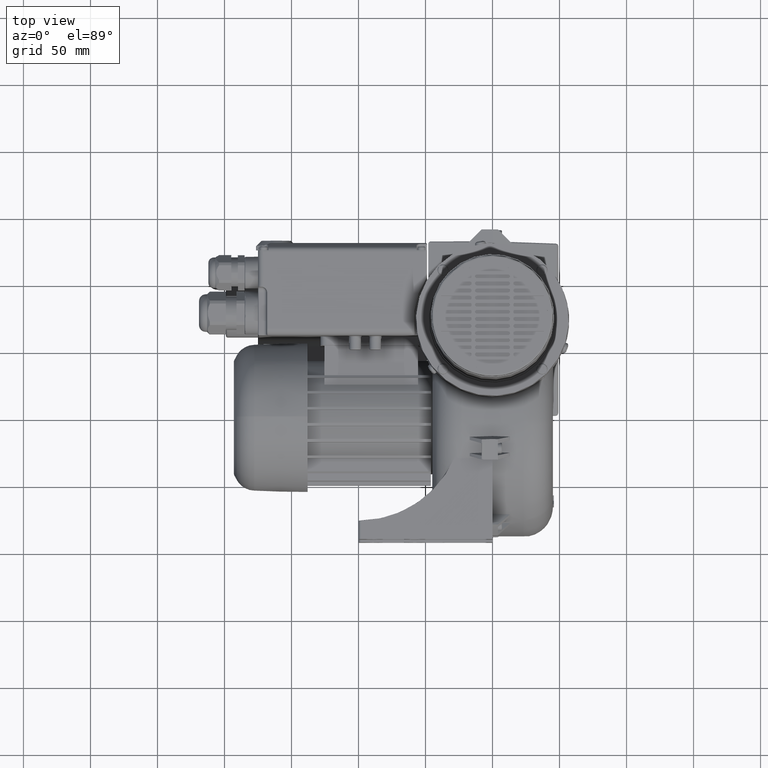
[diagram: clean part render]
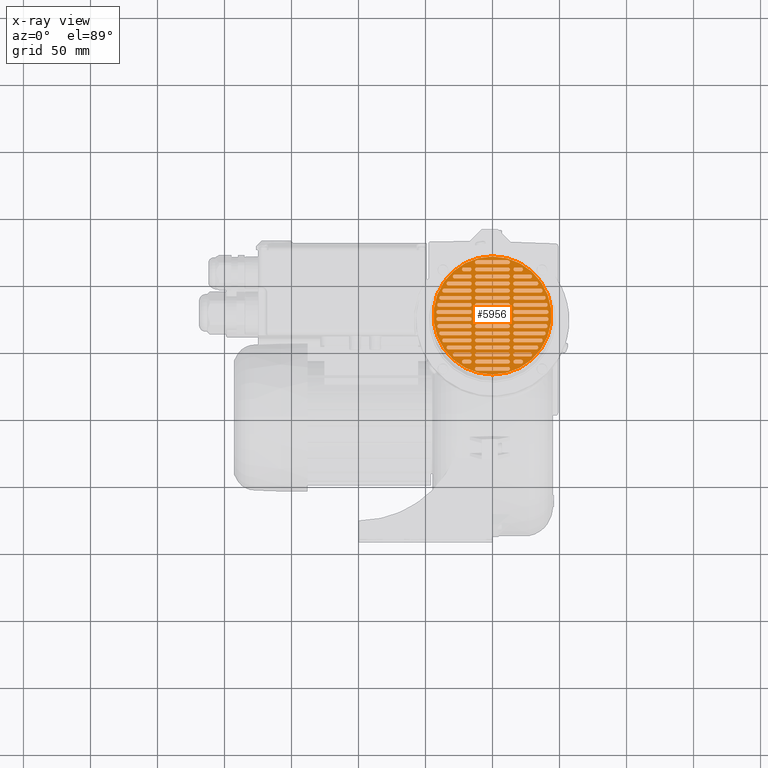
[diagram: x-ray — body ghosted, one internal face saturated and labeled with its STEP entity id]
A machine part, top view, then the same camera in x-ray: the body is ghosted and one INTERNAL B-rep face — a face not visible from any outside direction — is saturated and labeled: STEP entity #5956.
In plain terms, the highlighted planar face has unit normal (0, 0, 1).
Its self-contained STEP definition (entity closure, byte-faithful):
#5956 = ADVANCED_FACE( '', ( #12686, #12687, #12688, #12689, #12690, #12691, #12692, #12693, #12694, #12695, #12696, #12697, #12698, #12699, #12700, #12701, #12702, #12703, #12704, #12705, #12706, #12707, #12708, #12709, #12710, #12711, #12712, #12713, #12714, #12715, #12716, #12717, #12718, #12719, #12720, #12721, #12722, #12723, #12724, #12725, #12726, #12727, #12728, #12729, #12730 ), #12731, .F. );
#12686 = FACE_OUTER_BOUND( '', #24735, .T. );
#12687 = FACE_BOUND( '', #24736, .T. );
#12688 = FACE_BOUND( '', #24737, .T. );
#12689 = FACE_BOUND( '', #24738, .T. );
#12690 = FACE_BOUND( '', #24739, .T. );
#12691 = FACE_BOUND( '', #24740, .T. );
#12692 = FACE_BOUND( '', #24741, .T. );
#12693 = FACE_BOUND( '', #24742, .T. );
#12694 = FACE_BOUND( '', #24743, .T. );
#12695 = FACE_BOUND( '', #24744, .T. );
#12696 = FACE_BOUND( '', #24745, .T. );
#12697 = FACE_BOUND( '', #24746, .T. );
#12698 = FACE_BOUND( '', #24747, .T. );
#12699 = FACE_BOUND( '', #24748, .T. );
#12700 = FACE_BOUND( '', #24749, .T. );
#12701 = FACE_BOUND( '', #24750, .T. );
#12702 = FACE_BOUND( '', #24751, .T. );
#12703 = FACE_BOUND( '', #24752, .T. );
#12704 = FACE_BOUND( '', #24753, .T. );
#12705 = FACE_BOUND( '', #24754, .T. );
#12706 = FACE_BOUND( '', #24755, .T. );
#12707 = FACE_BOUND( '', #24756, .T. );
#12708 = FACE_BOUND( '', #24757, .T. );
#12709 = FACE_BOUND( '', #24758, .T. );
#12710 = FACE_BOUND( '', #24759, .T. );
#12711 = FACE_BOUND( '', #24760, .T. );
#12712 = FACE_BOUND( '', #24761, .T. );
#12713 = FACE_BOUND( '', #24762, .T. );
#12714 = FACE_BOUND( '', #24763, .T. );
#12715 = FACE_BOUND( '', #24764, .T. );
#12716 = FACE_BOUND( '', #24765, .T. );
#12717 = FACE_BOUND( '', #24766, .T. );
#12718 = FACE_BOUND( '', #24767, .T. );
#12719 = FACE_BOUND( '', #24768, .T. );
#12720 = FACE_BOUND( '', #24769, .T. );
#12721 = FACE_BOUND( '', #24770, .T. );
#12722 = FACE_BOUND( '', #24771, .T. );
#12723 = FACE_BOUND( '', #24772, .T. );
#12724 = FACE_BOUND( '', #24773, .T. );
#12725 = FACE_BOUND( '', #24774, .T. );
#12726 = FACE_BOUND( '', #24775, .T. );
#12727 = FACE_BOUND( '', #24776, .T. );
#12728 = FACE_BOUND( '', #24777, .T. );
#12729 = FACE_BOUND( '', #24778, .T. );
#12730 = FACE_BOUND( '', #24779, .T. );
#12731 = PLANE( '', #24780 );
#24735 = EDGE_LOOP( '', ( #44162, #44163 ) );
#24736 = EDGE_LOOP( '', ( #44164, #44165, #44166, #44167 ) );
#24737 = EDGE_LOOP( '', ( #44168, #44169, #44170, #44171 ) );
#24738 = EDGE_LOOP( '', ( #44172, #44173, #44174, #44175 ) );
#24739 = EDGE_LOOP( '', ( #44176, #44177, #44178, #44179 ) );
#24740 = EDGE_LOOP( '', ( #44180, #44181, #44182, #44183 ) );
#24741 = EDGE_LOOP( '', ( #44184, #44185, #44186, #44187 ) );
#24742 = EDGE_LOOP( '', ( #44188, #44189, #44190, #44191 ) );
#24743 = EDGE_LOOP( '', ( #44192, #44193, #44194, #44195 ) );
#24744 = EDGE_LOOP( '', ( #44196, #44197, #44198, #44199 ) );
#24745 = EDGE_LOOP( '', ( #44200, #44201, #44202, #44203 ) );
#24746 = EDGE_LOOP( '', ( #44204, #44205, #44206, #44207 ) );
#24747 = EDGE_LOOP( '', ( #44208, #44209, #44210, #44211 ) );
#24748 = EDGE_LOOP( '', ( #44212, #44213, #44214, #44215 ) );
#24749 = EDGE_LOOP( '', ( #44216, #44217, #44218, #44219 ) );
#24750 = EDGE_LOOP( '', ( #44220, #44221, #44222, #44223 ) );
#24751 = EDGE_LOOP( '', ( #44224, #44225, #44226, #44227 ) );
#24752 = EDGE_LOOP( '', ( #44228, #44229, #44230, #44231 ) );
#24753 = EDGE_LOOP( '', ( #44232, #44233, #44234, #44235 ) );
#24754 = EDGE_LOOP( '', ( #44236, #44237, #44238, #44239 ) );
#24755 = EDGE_LOOP( '', ( #44240, #44241, #44242, #44243 ) );
#24756 = EDGE_LOOP( '', ( #44244, #44245, #44246, #44247 ) );
#24757 = EDGE_LOOP( '', ( #44248, #44249, #44250, #44251 ) );
#24758 = EDGE_LOOP( '', ( #44252, #44253, #44254, #44255 ) );
#24759 = EDGE_LOOP( '', ( #44256, #44257, #44258, #44259 ) );
#24760 = EDGE_LOOP( '', ( #44260, #44261, #44262, #44263 ) );
#24761 = EDGE_LOOP( '', ( #44264, #44265, #44266, #44267 ) );
#24762 = EDGE_LOOP( '', ( #44268, #44269, #44270, #44271 ) );
#24763 = EDGE_LOOP( '', ( #44272, #44273, #44274, #44275 ) );
#24764 = EDGE_LOOP( '', ( #44276, #44277, #44278, #44279 ) );
#24765 = EDGE_LOOP( '', ( #44280, #44281, #44282, #44283 ) );
#24766 = EDGE_LOOP( '', ( #44284, #44285, #44286, #44287 ) );
#24767 = EDGE_LOOP( '', ( #44288, #44289, #44290, #44291 ) );
#24768 = EDGE_LOOP( '', ( #44292, #44293, #44294, #44295 ) );
#24769 = EDGE_LOOP( '', ( #44296, #44297, #44298, #44299 ) );
#24770 = EDGE_LOOP( '', ( #44300, #44301, #44302, #44303 ) );
#24771 = EDGE_LOOP( '', ( #44304, #44305, #44306, #44307 ) );
#24772 = EDGE_LOOP( '', ( #44308, #44309, #44310, #44311 ) );
#24773 = EDGE_LOOP( '', ( #44312, #44313, #44314, #44315 ) );
#24774 = EDGE_LOOP( '', ( #44316, #44317, #44318, #44319 ) );
#24775 = EDGE_LOOP( '', ( #44320, #44321, #44322, #44323 ) );
#24776 = EDGE_LOOP( '', ( #44324, #44325, #44326, #44327 ) );
#24777 = EDGE_LOOP( '', ( #44328, #44329, #44330, #44331 ) );
#24778 = EDGE_LOOP( '', ( #44332, #44333, #44334, #44335 ) );
#24779 = EDGE_LOOP( '', ( #44336, #44337, #44338, #44339 ) );
#24780 = AXIS2_PLACEMENT_3D( '', #44340, #44341, #44342 );
#44162 = ORIENTED_EDGE( '', *, *, #55021, .F. );
#44163 = ORIENTED_EDGE( '', *, *, #55020, .F. );
#44164 = ORIENTED_EDGE( '', *, *, #53190, .F. );
#44165 = ORIENTED_EDGE( '', *, *, #55248, .F. );
#44166 = ORIENTED_EDGE( '', *, *, #53206, .F. );
#44167 = ORIENTED_EDGE( '', *, *, #56975, .F. );
#44168 = ORIENTED_EDGE( '', *, *, #52945, .F. );
#44169 = ORIENTED_EDGE( '', *, *, #54946, .F. );
#44170 = ORIENTED_EDGE( '', *, *, #56976, .F. );
#44171 = ORIENTED_EDGE( '', *, *, #54322, .F. );
#44172 = ORIENTED_EDGE( '', *, *, #52941, .F. );
#44173 = ORIENTED_EDGE( '', *, *, #50832, .F. );
#44174 = ORIENTED_EDGE( '', *, *, #56977, .F. );
#44175 = ORIENTED_EDGE( '', *, *, #51692, .F. );
#44176 = ORIENTED_EDGE( '', *, *, #55071, .F. );
#44177 = ORIENTED_EDGE( '', *, *, #53045, .F. );
#44178 = ORIENTED_EDGE( '', *, *, #56799, .F. );
#44179 = ORIENTED_EDGE( '', *, *, #54546, .F. );
#44180 = ORIENTED_EDGE( '', *, *, #56868, .F. );
#44181 = ORIENTED_EDGE( '', *, *, #53618, .F. );
#44182 = ORIENTED_EDGE( '', *, *, #55339, .F. );
#44183 = ORIENTED_EDGE( '', *, *, #56359, .F. );
#44184 = ORIENTED_EDGE( '', *, *, #50902, .F. );
#44185 = ORIENTED_EDGE( '', *, *, #56978, .F. );
#44186 = ORIENTED_EDGE( '', *, *, #55437, .F. );
#44187 = ORIENTED_EDGE( '', *, *, #54907, .F. );
#44188 = ORIENTED_EDGE( '', *, *, #56979, .T. );
#44189 = ORIENTED_EDGE( '', *, *, #56656, .T. );
#44190 = ORIENTED_EDGE( '', *, *, #56903, .T. );
#44191 = ORIENTED_EDGE( '', *, *, #56980, .T. );
#44192 = ORIENTED_EDGE( '', *, *, #56068, .F. );
#44193 = ORIENTED_EDGE( '', *, *, #50708, .F. );
#44194 = ORIENTED_EDGE( '', *, *, #53131, .F. );
#44195 = ORIENTED_EDGE( '', *, *, #53978, .F. );
#44196 = ORIENTED_EDGE( '', *, *, #55986, .F. );
#44197 = ORIENTED_EDGE( '', *, *, #56625, .F. );
#44198 = ORIENTED_EDGE( '', *, *, #56981, .F. );
#44199 = ORIENTED_EDGE( '', *, *, #54046, .F. );
#44200 = ORIENTED_EDGE( '', *, *, #50100, .F. );
#44201 = ORIENTED_EDGE( '', *, *, #51791, .F. );
#44202 = ORIENTED_EDGE( '', *, *, #53158, .F. );
#44203 = ORIENTED_EDGE( '', *, *, #56001, .F. );
#44204 = ORIENTED_EDGE( '', *, *, #56982, .F. );
#44205 = ORIENTED_EDGE( '', *, *, #56983, .F. );
#44206 = ORIENTED_EDGE( '', *, *, #56984, .F. );
#44207 = ORIENTED_EDGE( '', *, *, #52048, .F. );
#44208 = ORIENTED_EDGE( '', *, *, #53532, .F. );
#44209 = ORIENTED_EDGE( '', *, *, #49278, .F. );
#44210 = ORIENTED_EDGE( '', *, *, #55208, .F. );
#44211 = ORIENTED_EDGE( '', *, *, #56794, .F. );
#44212 = ORIENTED_EDGE( '', *, *, #56985, .F. );
#44213 = ORIENTED_EDGE( '', *, *, #56527, .F. );
#44214 = ORIENTED_EDGE( '', *, *, #56986, .F. );
#44215 = ORIENTED_EDGE( '', *, *, #56987, .F. );
#44216 = ORIENTED_EDGE( '', *, *, #56988, .F. );
#44217 = ORIENTED_EDGE( '', *, *, #51607, .F. );
#44218 = ORIENTED_EDGE( '', *, *, #49325, .F. );
#44219 = ORIENTED_EDGE( '', *, *, #52123, .F. );
#44220 = ORIENTED_EDGE( '', *, *, #54333, .T. );
#44221 = ORIENTED_EDGE( '', *, *, #50115, .T. );
#44222 = ORIENTED_EDGE( '', *, *, #56156, .T. );
#44223 = ORIENTED_EDGE( '', *, *, #50176, .T. );
#44224 = ORIENTED_EDGE( '', *, *, #54336, .F. );
#44225 = ORIENTED_EDGE( '', *, *, #54318, .F. );
#44226 = ORIENTED_EDGE( '', *, *, #54077, .F. );
#44227 = ORIENTED_EDGE( '', *, *, #51704, .F. );
#44228 = ORIENTED_EDGE( '', *, *, #56989, .F. );
#44229 = ORIENTED_EDGE( '', *, *, #49934, .F. );
#44230 = ORIENTED_EDGE( '', *, *, #49426, .F. );
#44231 = ORIENTED_EDGE( '', *, *, #54675, .F. );
#44232 = ORIENTED_EDGE( '', *, *, #55639, .F. );
#44233 = ORIENTED_EDGE( '', *, *, #56990, .F. );
#44234 = ORIENTED_EDGE( '', *, *, #54955, .F. );
#44235 = ORIENTED_EDGE( '', *, *, #51838, .F. );
#44236 = ORIENTED_EDGE( '', *, *, #50551, .F. );
#44237 = ORIENTED_EDGE( '', *, *, #56991, .F. );
#44238 = ORIENTED_EDGE( '', *, *, #53171, .F. );
#44239 = ORIENTED_EDGE( '', *, *, #56992, .F. );
#44240 = ORIENTED_EDGE( '', *, *, #53938, .F. );
#44241 = ORIENTED_EDGE( '', *, *, #51589, .F. );
#44242 = ORIENTED_EDGE( '', *, *, #56993, .F. );
#44243 = ORIENTED_EDGE( '', *, *, #50301, .F. );
#44244 = ORIENTED_EDGE( '', *, *, #55348, .F. );
#44245 = ORIENTED_EDGE( '', *, *, #53999, .F. );
#44246 = ORIENTED_EDGE( '', *, *, #55068, .F. );
#44247 = ORIENTED_EDGE( '', *, *, #53455, .F. );
#44248 = ORIENTED_EDGE( '', *, *, #53145, .F. );
#44249 = ORIENTED_EDGE( '', *, *, #56994, .F. );
#44250 = ORIENTED_EDGE( '', *, *, #56995, .F. );
#44251 = ORIENTED_EDGE( '', *, *, #53341, .F. );
#44252 = ORIENTED_EDGE( '', *, *, #56996, .F. );
#44253 = ORIENTED_EDGE( '', *, *, #51922, .F. );
#44254 = ORIENTED_EDGE( '', *, *, #56997, .F. );
#44255 = ORIENTED_EDGE( '', *, *, #53337, .F. );
#44256 = ORIENTED_EDGE( '', *, *, #56998, .F. );
#44257 = ORIENTED_EDGE( '', *, *, #53139, .F. );
#44258 = ORIENTED_EDGE( '', *, *, #55418, .F. );
#44259 = ORIENTED_EDGE( '', *, *, #56133, .F. );
#44260 = ORIENTED_EDGE( '', *, *, #56999, .F. );
#44261 = ORIENTED_EDGE( '', *, *, #57000, .F. );
#44262 = ORIENTED_EDGE( '', *, *, #51575, .F. );
#44263 = ORIENTED_EDGE( '', *, *, #57001, .F. );
#44264 = ORIENTED_EDGE( '', *, *, #51778, .F. );
#44265 = ORIENTED_EDGE( '', *, *, #56807, .F. );
#44266 = ORIENTED_EDGE( '', *, *, #56258, .F. );
#44267 = ORIENTED_EDGE( '', *, *, #53941, .F. );
#44268 = ORIENTED_EDGE( '', *, *, #54351, .F. );
#44269 = ORIENTED_EDGE( '', *, *, #50009, .F. );
#44270 = ORIENTED_EDGE( '', *, *, #57002, .F. );
#44271 = ORIENTED_EDGE( '', *, *, #56562, .F. );
#44272 = ORIENTED_EDGE( '', *, *, #55747, .F. );
#44273 = ORIENTED_EDGE( '', *, *, #57003, .F. );
#44274 = ORIENTED_EDGE( '', *, *, #55005, .F. );
#44275 = ORIENTED_EDGE( '', *, *, #57004, .F. );
#44276 = ORIENTED_EDGE( '', *, *, #55645, .F. );
#44277 = ORIENTED_EDGE( '', *, *, #52904, .F. );
#44278 = ORIENTED_EDGE( '', *, *, #50610, .F. );
#44279 = ORIENTED_EDGE( '', *, *, #57005, .F. );
#44280 = ORIENTED_EDGE( '', *, *, #50014, .F. );
#44281 = ORIENTED_EDGE( '', *, *, #56858, .F. );
#44282 = ORIENTED_EDGE( '', *, *, #55857, .F. );
#44283 = ORIENTED_EDGE( '', *, *, #54601, .F. );
#44284 = ORIENTED_EDGE( '', *, *, #54864, .F. );
#44285 = ORIENTED_EDGE( '', *, *, #57006, .F. );
#44286 = ORIENTED_EDGE( '', *, *, #55144, .F. );
#44287 = ORIENTED_EDGE( '', *, *, #55189, .F. );
#44288 = ORIENTED_EDGE( '', *, *, #56789, .F. );
#44289 = ORIENTED_EDGE( '', *, *, #57007, .F. );
#44290 = ORIENTED_EDGE( '', *, *, #56127, .F. );
#44291 = ORIENTED_EDGE( '', *, *, #54915, .F. );
#44292 = ORIENTED_EDGE( '', *, *, #50453, .F. );
#44293 = ORIENTED_EDGE( '', *, *, #50712, .F. );
#44294 = ORIENTED_EDGE( '', *, *, #56929, .F. );
#44295 = ORIENTED_EDGE( '', *, *, #57008, .F. );
#44296 = ORIENTED_EDGE( '', *, *, #56554, .F. );
#44297 = ORIENTED_EDGE( '', *, *, #57009, .F. );
#44298 = ORIENTED_EDGE( '', *, *, #56162, .F. );
#44299 = ORIENTED_EDGE( '', *, *, #54890, .F. );
#44300 = ORIENTED_EDGE( '', *, *, #54022, .F. );
#44301 = ORIENTED_EDGE( '', *, *, #56199, .F. );
#44302 = ORIENTED_EDGE( '', *, *, #57010, .F. );
#44303 = ORIENTED_EDGE( '', *, *, #57011, .F. );
#44304 = ORIENTED_EDGE( '', *, *, #50390, .F. );
#44305 = ORIENTED_EDGE( '', *, *, #57012, .F. );
#44306 = ORIENTED_EDGE( '', *, *, #53876, .F. );
#44307 = ORIENTED_EDGE( '', *, *, #49351, .F. );
#44308 = ORIENTED_EDGE( '', *, *, #54898, .T. );
#44309 = ORIENTED_EDGE( '', *, *, #52106, .T. );
#44310 = ORIENTED_EDGE( '', *, *, #57013, .T. );
#44311 = ORIENTED_EDGE( '', *, *, #56849, .T. );
#44312 = ORIENTED_EDGE( '', *, *, #52754, .F. );
#44313 = ORIENTED_EDGE( '', *, *, #53465, .F. );
#44314 = ORIENTED_EDGE( '', *, *, #56757, .F. );
#44315 = ORIENTED_EDGE( '', *, *, #56805, .F. );
#44316 = ORIENTED_EDGE( '', *, *, #57014, .F. );
#44317 = ORIENTED_EDGE( '', *, *, #55893, .F. );
#44318 = ORIENTED_EDGE( '', *, *, #55909, .F. );
#44319 = ORIENTED_EDGE( '', *, *, #50154, .F. );
#44320 = ORIENTED_EDGE( '', *, *, #54174, .F. );
#44321 = ORIENTED_EDGE( '', *, *, #53434, .F. );
#44322 = ORIENTED_EDGE( '', *, *, #51951, .F. );
#44323 = ORIENTED_EDGE( '', *, *, #57015, .F. );
#44324 = ORIENTED_EDGE( '', *, *, #56611, .F. );
#44325 = ORIENTED_EDGE( '', *, *, #56459, .F. );
#44326 = ORIENTED_EDGE( '', *, *, #56721, .F. );
#44327 = ORIENTED_EDGE( '', *, *, #57016, .F. );
#44328 = ORIENTED_EDGE( '', *, *, #57017, .F. );
#44329 = ORIENTED_EDGE( '', *, *, #51453, .F. );
#44330 = ORIENTED_EDGE( '', *, *, #56569, .F. );
#44331 = ORIENTED_EDGE( '', *, *, #53673, .F. );
#44332 = ORIENTED_EDGE( '', *, *, #50040, .F. );
#44333 = ORIENTED_EDGE( '', *, *, #53529, .F. );
#44334 = ORIENTED_EDGE( '', *, *, #50208, .F. );
#44335 = ORIENTED_EDGE( '', *, *, #57018, .F. );
#44336 = ORIENTED_EDGE( '', *, *, #53662, .T. );
#44337 = ORIENTED_EDGE( '', *, *, #56337, .T. );
#44338 = ORIENTED_EDGE( '', *, *, #54590, .T. );
#44339 = ORIENTED_EDGE( '', *, *, #57019, .T. );
#44340 = CARTESIAN_POINT( '', ( -0.0632919467191808, 71.0004271479854, 298.450000000000 ) );
#44341 = DIRECTION( '', ( 0.000000000000000, 0.000000000000000, 1.00000000000000 ) );
#44342 = DIRECTION( '', ( 1.00000000000000, 0.000000000000000, 0.000000000000000 ) );
#49278 = EDGE_CURVE( '', #58159, #58161, #58162, .T. );
#49325 = EDGE_CURVE( '', #58245, #58247, #58248, .T. );
#49351 = EDGE_CURVE( '', #58291, #58293, #58294, .T. );
#49426 = EDGE_CURVE( '', #58426, #58428, #58429, .T. );
#49934 = EDGE_CURVE( '', #58428, #59357, #59358, .T. );
#50009 = EDGE_CURVE( '', #59479, #59481, #59482, .T. );
#50014 = EDGE_CURVE( '', #59488, #59490, #59491, .T. );
#50040 = EDGE_CURVE( '', #59534, #59536, #59537, .T. );
#50100 = EDGE_CURVE( '', #59636, #59638, #59639, .T. );
#50115 = EDGE_CURVE( '', #59658, #59662, #59664, .T. );
#50154 = EDGE_CURVE( '', #59727, #59729, #59730, .T. );
#50176 = EDGE_CURVE( '', #59761, #59765, #59767, .T. );
#50208 = EDGE_CURVE( '', #59821, #59823, #59824, .T. );
#50301 = EDGE_CURVE( '', #60001, #60003, #60004, .T. );
#50390 = EDGE_CURVE( '', #60154, #58291, #60156, .T. );
#50453 = EDGE_CURVE( '', #60265, #60267, #60268, .T. );
#50551 = EDGE_CURVE( '', #60433, #60429, #60435, .T. );
#50610 = EDGE_CURVE( '', #60537, #60539, #60540, .T. );
#50708 = EDGE_CURVE( '', #60710, #60706, #60712, .T. );
#50712 = EDGE_CURVE( '', #60716, #60265, #60718, .T. );
#50832 = EDGE_CURVE( '', #60918, #60920, #60921, .T. );
#50902 = EDGE_CURVE( '', #61034, #61036, #61037, .T. );
#51453 = EDGE_CURVE( '', #61985, #61987, #61988, .T. );
#51575 = EDGE_CURVE( '', #62183, #62185, #62186, .T. );
#51589 = EDGE_CURVE( '', #62207, #62209, #62210, .T. );
#51607 = EDGE_CURVE( '', #58247, #62239, #62240, .T. );
#51692 = EDGE_CURVE( '', #62375, #62377, #62378, .T. );
#51704 = EDGE_CURVE( '', #62393, #62395, #62396, .T. );
#51778 = EDGE_CURVE( '', #62515, #62517, #62518, .T. );
#51791 = EDGE_CURVE( '', #62535, #59636, #62537, .T. );
#51838 = EDGE_CURVE( '', #62611, #62613, #62614, .T. );
#51922 = EDGE_CURVE( '', #62756, #62758, #62759, .T. );
#51951 = EDGE_CURVE( '', #62805, #62807, #62808, .T. );
#52048 = EDGE_CURVE( '', #62963, #62965, #62966, .T. );
#52106 = EDGE_CURVE( '', #63057, #63061, #63063, .T. );
#52123 = EDGE_CURVE( '', #63088, #58245, #63090, .T. );
#52754 = EDGE_CURVE( '', #64114, #64116, #64117, .T. );
#52904 = EDGE_CURVE( '', #60539, #64343, #64344, .T. );
#52941 = EDGE_CURVE( '', #60920, #62375, #64393, .T. );
#52945 = EDGE_CURVE( '', #64398, #64400, #64401, .T. );
#53045 = EDGE_CURVE( '', #64552, #64554, #64555, .T. );
#53131 = EDGE_CURVE( '', #64681, #60710, #64683, .T. );
#53139 = EDGE_CURVE( '', #64695, #64697, #64698, .T. );
#53145 = EDGE_CURVE( '', #64706, #64702, #64708, .T. );
#53158 = EDGE_CURVE( '', #64727, #62535, #64729, .T. );
#53171 = EDGE_CURVE( '', #64746, #64748, #64749, .T. );
#53190 = EDGE_CURVE( '', #64777, #64779, #64780, .T. );
#53206 = EDGE_CURVE( '', #64801, #64803, #64804, .T. );
#53337 = EDGE_CURVE( '', #64997, #64999, #65000, .T. );
#53341 = EDGE_CURVE( '', #64702, #65005, #65006, .T. );
#53434 = EDGE_CURVE( '', #62807, #65153, #65154, .T. );
#53455 = EDGE_CURVE( '', #65184, #65186, #65187, .T. );
#53465 = EDGE_CURVE( '', #65199, #64114, #65201, .T. );
#53529 = EDGE_CURVE( '', #59823, #59534, #65290, .T. );
#53532 = EDGE_CURVE( '', #58161, #65294, #65295, .T. );
#53618 = EDGE_CURVE( '', #65415, #65417, #65418, .T. );
#53662 = EDGE_CURVE( '', #65476, #65480, #65482, .T. );
#53673 = EDGE_CURVE( '', #65497, #65499, #65500, .T. );
#53876 = EDGE_CURVE( '', #58293, #65802, #65803, .T. );
#53938 = EDGE_CURVE( '', #62209, #60001, #65886, .T. );
#53941 = EDGE_CURVE( '', #62517, #65890, #65891, .T. );
#53978 = EDGE_CURVE( '', #65937, #64681, #65939, .T. );
#53999 = EDGE_CURVE( '', #65969, #65971, #65972, .T. );
#54022 = EDGE_CURVE( '', #66004, #66006, #66007, .T. );
#54046 = EDGE_CURVE( '', #66040, #66042, #66043, .T. );
#54077 = EDGE_CURVE( '', #62395, #66086, #66087, .T. );
#54174 = EDGE_CURVE( '', #65153, #66226, #66227, .T. );
#54318 = EDGE_CURVE( '', #66086, #66427, #66428, .T. );
#54322 = EDGE_CURVE( '', #64400, #66433, #66434, .T. );
#54333 = EDGE_CURVE( '', #59765, #59658, #66447, .T. );
#54336 = EDGE_CURVE( '', #66427, #62393, #66450, .T. );
#54351 = EDGE_CURVE( '', #59481, #66473, #66474, .T. );
#54546 = EDGE_CURVE( '', #66746, #66748, #66749, .T. );
#54590 = EDGE_CURVE( '', #66805, #66809, #66811, .T. );
#54601 = EDGE_CURVE( '', #59490, #66825, #66826, .T. );
#54675 = EDGE_CURVE( '', #66928, #58426, #66930, .T. );
#54864 = EDGE_CURVE( '', #67205, #67207, #67208, .T. );
#54890 = EDGE_CURVE( '', #67241, #67243, #67244, .T. );
#54898 = EDGE_CURVE( '', #67253, #63057, #67256, .T. );
#54907 = EDGE_CURVE( '', #61036, #67268, #67269, .T. );
#54915 = EDGE_CURVE( '', #67279, #67281, #67282, .T. );
#54946 = EDGE_CURVE( '', #67323, #64398, #67325, .T. );
#54955 = EDGE_CURVE( '', #62613, #67336, #67337, .T. );
#55005 = EDGE_CURVE( '', #67401, #67403, #67404, .T. );
#55020 = EDGE_CURVE( '', #67424, #67425, #67426, .T. );
#55021 = EDGE_CURVE( '', #67425, #67424, #67427, .T. );
#55068 = EDGE_CURVE( '', #65186, #65969, #67489, .T. );
#55071 = EDGE_CURVE( '', #64554, #66746, #67492, .T. );
#55144 = EDGE_CURVE( '', #67595, #67597, #67598, .T. );
#55189 = EDGE_CURVE( '', #67207, #67595, #67659, .T. );
#55208 = EDGE_CURVE( '', #67681, #58159, #67683, .T. );
#55248 = EDGE_CURVE( '', #64803, #64777, #67730, .T. );
#55339 = EDGE_CURVE( '', #67843, #65415, #67845, .T. );
#55348 = EDGE_CURVE( '', #65971, #65184, #67855, .T. );
#55418 = EDGE_CURVE( '', #67945, #64695, #67947, .T. );
#55437 = EDGE_CURVE( '', #67268, #67970, #67971, .T. );
#55639 = EDGE_CURVE( '', #68244, #62611, #68246, .T. );
#55645 = EDGE_CURVE( '', #64343, #68252, #68254, .T. );
#55747 = EDGE_CURVE( '', #68379, #68381, #68382, .T. );
#55857 = EDGE_CURVE( '', #66825, #68522, #68523, .T. );
#55893 = EDGE_CURVE( '', #68569, #68571, #68572, .T. );
#55909 = EDGE_CURVE( '', #59729, #68569, #68590, .T. );
#55986 = EDGE_CURVE( '', #68694, #66040, #68696, .T. );
#56001 = EDGE_CURVE( '', #59638, #64727, #68714, .T. );
#56068 = EDGE_CURVE( '', #60706, #65937, #68796, .T. );
#56127 = EDGE_CURVE( '', #67281, #68863, #68864, .T. );
#56133 = EDGE_CURVE( '', #68869, #67945, #68871, .T. );
#56156 = EDGE_CURVE( '', #59662, #59761, #68896, .T. );
#56162 = EDGE_CURVE( '', #67243, #68902, #68903, .T. );
#56199 = EDGE_CURVE( '', #68946, #66004, #68948, .T. );
#56258 = EDGE_CURVE( '', #65890, #69018, #69019, .T. );
#56337 = EDGE_CURVE( '', #65480, #66805, #69109, .T. );
#56359 = EDGE_CURVE( '', #69135, #67843, #69137, .T. );
#56459 = EDGE_CURVE( '', #69259, #69261, #69262, .T. );
#56527 = EDGE_CURVE( '', #69345, #69347, #69348, .T. );
#56554 = EDGE_CURVE( '', #69379, #67241, #69381, .T. );
#56562 = EDGE_CURVE( '', #66473, #69391, #69392, .T. );
#56569 = EDGE_CURVE( '', #65499, #61985, #69399, .T. );
#56611 = EDGE_CURVE( '', #69261, #69453, #69454, .T. );
#56625 = EDGE_CURVE( '', #69468, #68694, #69470, .T. );
#56656 = EDGE_CURVE( '', #69506, #69508, #69510, .T. );
#56721 = EDGE_CURVE( '', #69582, #69259, #69584, .T. );
#56757 = EDGE_CURVE( '', #69621, #65199, #69623, .T. );
#56789 = EDGE_CURVE( '', #69656, #67279, #69658, .T. );
#56794 = EDGE_CURVE( '', #65294, #67681, #69663, .T. );
#56799 = EDGE_CURVE( '', #66748, #64552, #69668, .T. );
#56805 = EDGE_CURVE( '', #64116, #69621, #69674, .T. );
#56807 = EDGE_CURVE( '', #69018, #62515, #69676, .T. );
#56849 = EDGE_CURVE( '', #69719, #67253, #69721, .T. );
#56858 = EDGE_CURVE( '', #68522, #59488, #69731, .T. );
#56868 = EDGE_CURVE( '', #65417, #69135, #69742, .T. );
#56903 = EDGE_CURVE( '', #69508, #69777, #69779, .T. );
#56929 = EDGE_CURVE( '', #69809, #60716, #69811, .T. );
#56975 = EDGE_CURVE( '', #64779, #64801, #69858, .T. );
#56976 = EDGE_CURVE( '', #66433, #67323, #69859, .T. );
#56977 = EDGE_CURVE( '', #62377, #60918, #69860, .T. );
#56978 = EDGE_CURVE( '', #67970, #61034, #69861, .T. );
#56979 = EDGE_CURVE( '', #69862, #69506, #69863, .T. );
#56980 = EDGE_CURVE( '', #69777, #69862, #69864, .T. );
#56981 = EDGE_CURVE( '', #66042, #69468, #69865, .T. );
#56982 = EDGE_CURVE( '', #69866, #62963, #69867, .T. );
#56983 = EDGE_CURVE( '', #69868, #69866, #69869, .T. );
#56984 = EDGE_CURVE( '', #62965, #69868, #69870, .T. );
#56985 = EDGE_CURVE( '', #69347, #69871, #69872, .T. );
#56986 = EDGE_CURVE( '', #69873, #69345, #69874, .T. );
#56987 = EDGE_CURVE( '', #69871, #69873, #69875, .T. );
#56988 = EDGE_CURVE( '', #62239, #63088, #69876, .T. );
#56989 = EDGE_CURVE( '', #59357, #66928, #69877, .T. );
#56990 = EDGE_CURVE( '', #67336, #68244, #69878, .T. );
#56991 = EDGE_CURVE( '', #64748, #60433, #69879, .T. );
#56992 = EDGE_CURVE( '', #60429, #64746, #69880, .T. );
#56993 = EDGE_CURVE( '', #60003, #62207, #69881, .T. );
#56994 = EDGE_CURVE( '', #69882, #64706, #69883, .T. );
#56995 = EDGE_CURVE( '', #65005, #69882, #69884, .T. );
#56996 = EDGE_CURVE( '', #62758, #64997, #69885, .T. );
#56997 = EDGE_CURVE( '', #64999, #62756, #69886, .T. );
#56998 = EDGE_CURVE( '', #64697, #68869, #69887, .T. );
#56999 = EDGE_CURVE( '', #69888, #69889, #69890, .T. );
#57000 = EDGE_CURVE( '', #62185, #69888, #69891, .T. );
#57001 = EDGE_CURVE( '', #69889, #62183, #69892, .T. );
#57002 = EDGE_CURVE( '', #69391, #59479, #69893, .T. );
#57003 = EDGE_CURVE( '', #67403, #68379, #69894, .T. );
#57004 = EDGE_CURVE( '', #68381, #67401, #69895, .T. );
#57005 = EDGE_CURVE( '', #68252, #60537, #69896, .T. );
#57006 = EDGE_CURVE( '', #67597, #67205, #69897, .T. );
#57007 = EDGE_CURVE( '', #68863, #69656, #69898, .T. );
#57008 = EDGE_CURVE( '', #60267, #69809, #69899, .T. );
#57009 = EDGE_CURVE( '', #68902, #69379, #69900, .T. );
#57010 = EDGE_CURVE( '', #69901, #68946, #69902, .T. );
#57011 = EDGE_CURVE( '', #66006, #69901, #69903, .T. );
#57012 = EDGE_CURVE( '', #65802, #60154, #69904, .T. );
#57013 = EDGE_CURVE( '', #63061, #69719, #69905, .T. );
#57014 = EDGE_CURVE( '', #68571, #59727, #69906, .T. );
#57015 = EDGE_CURVE( '', #66226, #62805, #69907, .T. );
#57016 = EDGE_CURVE( '', #69453, #69582, #69908, .T. );
#57017 = EDGE_CURVE( '', #61987, #65497, #69909, .T. );
#57018 = EDGE_CURVE( '', #59536, #59821, #69910, .T. );
#57019 = EDGE_CURVE( '', #66809, #65476, #69911, .T. );
#58159 = VERTEX_POINT( '', #71427 );
#58161 = VERTEX_POINT( '', #71430 );
#58162 = CIRCLE( '', #71431, 1.39999999999999 );
#58245 = VERTEX_POINT( '', #71585 );
#58247 = VERTEX_POINT( '', #71588 );
#58248 = LINE( '', #71589, #71590 );
#58291 = VERTEX_POINT( '', #71649 );
#58293 = VERTEX_POINT( '', #71652 );
#58294 = LINE( '', #71653, #71654 );
#58426 = VERTEX_POINT( '', #71939 );
#58428 = VERTEX_POINT( '', #71942 );
#58429 = LINE( '', #71943, #71944 );
#59357 = VERTEX_POINT( '', #73547 );
#59358 = CIRCLE( '', #73548, 1.39999999999999 );
#59479 = VERTEX_POINT( '', #73816 );
#59481 = VERTEX_POINT( '', #73819 );
#59482 = LINE( '', #73820, #73821 );
#59488 = VERTEX_POINT( '', #73828 );
#59490 = VERTEX_POINT( '', #73831 );
#59491 = CIRCLE( '', #73832, 1.39999999999999 );
#59534 = VERTEX_POINT( '', #73891 );
#59536 = VERTEX_POINT( '', #73894 );
#59537 = LINE( '', #73895, #73896 );
#59636 = VERTEX_POINT( '', #74091 );
#59638 = VERTEX_POINT( '', #74094 );
#59639 = LINE( '', #74095, #74096 );
#59658 = VERTEX_POINT( '', #74123 );
#59662 = VERTEX_POINT( '', #74128 );
#59664 = CIRCLE( '', #74131, 1.39999999999999 );
#59727 = VERTEX_POINT( '', #74215 );
#59729 = VERTEX_POINT( '', #74218 );
#59730 = CIRCLE( '', #74219, 1.39999999999999 );
#59761 = VERTEX_POINT( '', #74360 );
#59765 = VERTEX_POINT( '', #74365 );
#59767 = CIRCLE( '', #74368, 1.39999999999999 );
#59821 = VERTEX_POINT( '', #74437 );
#59823 = VERTEX_POINT( '', #74440 );
#59824 = LINE( '', #74441, #74442 );
#60001 = VERTEX_POINT( '', #74780 );
#60003 = VERTEX_POINT( '', #74783 );
#60004 = CIRCLE( '', #74784, 1.39999999999999 );
#60154 = VERTEX_POINT( '', #75094 );
#60156 = CIRCLE( '', #75097, 1.39999999999999 );
#60265 = VERTEX_POINT( '', #75326 );
#60267 = VERTEX_POINT( '', #75329 );
#60268 = CIRCLE( '', #75330, 1.39999999999999 );
#60429 = VERTEX_POINT( '', #75655 );
#60433 = VERTEX_POINT( '', #75661 );
#60435 = LINE( '', #75664, #75665 );
#60537 = VERTEX_POINT( '', #75962 );
#60539 = VERTEX_POINT( '', #75965 );
#60540 = LINE( '', #75966, #75967 );
#60706 = VERTEX_POINT( '', #76264 );
#60710 = VERTEX_POINT( '', #76270 );
#60712 = LINE( '', #76273, #76274 );
#60716 = VERTEX_POINT( '', #76279 );
#60718 = LINE( '', #76282, #76283 );
#60918 = VERTEX_POINT( '', #76766 );
#60920 = VERTEX_POINT( '', #76769 );
#60921 = LINE( '', #76770, #76771 );
#61034 = VERTEX_POINT( '', #76948 );
#61036 = VERTEX_POINT( '', #76951 );
#61037 = CIRCLE( '', #76952, 1.39999999999999 );
#61985 = VERTEX_POINT( '', #78671 );
#61987 = VERTEX_POINT( '', #78674 );
#61988 = CIRCLE( '', #78675, 1.39999999999999 );
#62183 = VERTEX_POINT( '', #79006 );
#62185 = VERTEX_POINT( '', #79009 );
#62186 = CIRCLE( '', #79010, 1.39999999999999 );
#62207 = VERTEX_POINT( '', #79063 );
#62209 = VERTEX_POINT( '', #79066 );
#62210 = CIRCLE( '', #79067, 1.39999999999999 );
#62239 = VERTEX_POINT( '', #79103 );
#62240 = CIRCLE( '', #79104, 1.39999999999999 );
#62375 = VERTEX_POINT( '', #79325 );
#62377 = VERTEX_POINT( '', #79328 );
#62378 = LINE( '', #79329, #79330 );
#62393 = VERTEX_POINT( '', #79352 );
#62395 = VERTEX_POINT( '', #79355 );
#62396 = CIRCLE( '', #79356, 1.39999999999999 );
#62515 = VERTEX_POINT( '', #79540 );
#62517 = VERTEX_POINT( '', #79543 );
#62518 = CIRCLE( '', #79544, 1.39999999999999 );
#62535 = VERTEX_POINT( '', #79568 );
#62537 = CIRCLE( '', #79571, 1.39999999999999 );
#62611 = VERTEX_POINT( '', #79670 );
#62613 = VERTEX_POINT( '', #79673 );
#62614 = CIRCLE( '', #79674, 1.39999999999999 );
#62756 = VERTEX_POINT( '', #79945 );
#62758 = VERTEX_POINT( '', #79948 );
#62759 = LINE( '', #79949, #79950 );
#62805 = VERTEX_POINT( '', #80044 );
#62807 = VERTEX_POINT( '', #80047 );
#62808 = LINE( '', #80048, #80049 );
#62963 = VERTEX_POINT( '', #80468 );
#62965 = VERTEX_POINT( '', #80471 );
#62966 = CIRCLE( '', #80472, 1.39999999999999 );
#63057 = VERTEX_POINT( '', #80706 );
#63061 = VERTEX_POINT( '', #80712 );
#63063 = LINE( '', #80715, #80716 );
#63088 = VERTEX_POINT( '', #80751 );
#63090 = CIRCLE( '', #80754, 1.39999999999999 );
#64114 = VERTEX_POINT( '', #82850 );
#64116 = VERTEX_POINT( '', #82853 );
#64117 = LINE( '', #82854, #82855 );
#64343 = VERTEX_POINT( '', #83234 );
#64344 = CIRCLE( '', #83235, 1.39999999999999 );
#64393 = CIRCLE( '', #83360, 1.39999999999999 );
#64398 = VERTEX_POINT( '', #83365 );
#64400 = VERTEX_POINT( '', #83368 );
#64401 = CIRCLE( '', #83369, 1.39999999999999 );
#64552 = VERTEX_POINT( '', #83633 );
#64554 = VERTEX_POINT( '', #83636 );
#64555 = LINE( '', #83637, #83638 );
#64681 = VERTEX_POINT( '', #83844 );
#64683 = CIRCLE( '', #83847, 1.39999999999999 );
#64695 = VERTEX_POINT( '', #83886 );
#64697 = VERTEX_POINT( '', #83889 );
#64698 = LINE( '', #83890, #83891 );
#64702 = VERTEX_POINT( '', #83896 );
#64706 = VERTEX_POINT( '', #83902 );
#64708 = LINE( '', #83905, #83906 );
#64727 = VERTEX_POINT( '', #83930 );
#64729 = LINE( '', #83933, #83934 );
#64746 = VERTEX_POINT( '', #83971 );
#64748 = VERTEX_POINT( '', #83974 );
#64749 = LINE( '', #83975, #83976 );
#64777 = VERTEX_POINT( '', #84024 );
#64779 = VERTEX_POINT( '', #84027 );
#64780 = CIRCLE( '', #84028, 1.39999999999999 );
#64801 = VERTEX_POINT( '', #84056 );
#64803 = VERTEX_POINT( '', #84059 );
#64804 = CIRCLE( '', #84060, 1.39999999999999 );
#64997 = VERTEX_POINT( '', #84399 );
#64999 = VERTEX_POINT( '', #84402 );
#65000 = LINE( '', #84403, #84404 );
#65005 = VERTEX_POINT( '', #84410 );
#65006 = CIRCLE( '', #84411, 1.39999999999999 );
#65153 = VERTEX_POINT( '', #84579 );
#65154 = CIRCLE( '', #84580, 1.39999999999999 );
#65184 = VERTEX_POINT( '', #84622 );
#65186 = VERTEX_POINT( '', #84625 );
#65187 = CIRCLE( '', #84626, 1.39999999999999 );
#65199 = VERTEX_POINT( '', #84671 );
#65201 = CIRCLE( '', #84674, 1.39999999999999 );
#65290 = CIRCLE( '', #84824, 1.39999999999999 );
#65294 = VERTEX_POINT( '', #84829 );
#65295 = LINE( '', #84830, #84831 );
#65415 = VERTEX_POINT( '', #85058 );
#65417 = VERTEX_POINT( '', #85061 );
#65418 = LINE( '', #85062, #85063 );
#65476 = VERTEX_POINT( '', #85192 );
#65480 = VERTEX_POINT( '', #85198 );
#65482 = LINE( '', #85201, #85202 );
#65497 = VERTEX_POINT( '', #85222 );
#65499 = VERTEX_POINT( '', #85225 );
#65500 = CIRCLE( '', #85226, 1.39999999999999 );
#65802 = VERTEX_POINT( '', #85826 );
#65803 = CIRCLE( '', #85827, 1.39999999999999 );
#65886 = LINE( '', #85977, #85978 );
#65890 = VERTEX_POINT( '', #85983 );
#65891 = LINE( '', #85984, #85985 );
#65937 = VERTEX_POINT( '', #86069 );
#65939 = LINE( '', #86072, #86073 );
#65969 = VERTEX_POINT( '', #86141 );
#65971 = VERTEX_POINT( '', #86144 );
#65972 = CIRCLE( '', #86145, 1.39999999999999 );
#66004 = VERTEX_POINT( '', #86185 );
#66006 = VERTEX_POINT( '', #86188 );
#66007 = CIRCLE( '', #86189, 1.39999999999999 );
#66040 = VERTEX_POINT( '', #86233 );
#66042 = VERTEX_POINT( '', #86236 );
#66043 = CIRCLE( '', #86237, 1.39999999999999 );
#66086 = VERTEX_POINT( '', #86325 );
#66087 = LINE( '', #86326, #86327 );
#66226 = VERTEX_POINT( '', #86618 );
#66227 = LINE( '', #86619, #86620 );
#66427 = VERTEX_POINT( '', #86999 );
#66428 = CIRCLE( '', #87000, 1.39999999999999 );
#66433 = VERTEX_POINT( '', #87007 );
#66434 = LINE( '', #87008, #87009 );
#66447 = LINE( '', #87026, #87027 );
#66450 = LINE( '', #87031, #87032 );
#66473 = VERTEX_POINT( '', #87061 );
#66474 = CIRCLE( '', #87062, 1.39999999999999 );
#66746 = VERTEX_POINT( '', #87671 );
#66748 = VERTEX_POINT( '', #87674 );
#66749 = LINE( '', #87675, #87676 );
#66805 = VERTEX_POINT( '', #87763 );
#66809 = VERTEX_POINT( '', #87769 );
#66811 = LINE( '', #87772, #87773 );
#66825 = VERTEX_POINT( '', #87791 );
#66826 = LINE( '', #87792, #87793 );
#66928 = VERTEX_POINT( '', #87970 );
#66930 = CIRCLE( '', #87973, 1.39999999999999 );
#67205 = VERTEX_POINT( '', #88519 );
#67207 = VERTEX_POINT( '', #88522 );
#67208 = CIRCLE( '', #88523, 1.39999999999999 );
#67241 = VERTEX_POINT( '', #88567 );
#67243 = VERTEX_POINT( '', #88570 );
#67244 = LINE( '', #88571, #88572 );
#67253 = VERTEX_POINT( '', #88582 );
#67256 = CIRCLE( '', #88586, 1.39999999999999 );
#67268 = VERTEX_POINT( '', #88603 );
#67269 = LINE( '', #88604, #88605 );
#67279 = VERTEX_POINT( '', #88619 );
#67281 = VERTEX_POINT( '', #88622 );
#67282 = LINE( '', #88623, #88624 );
#67323 = VERTEX_POINT( '', #88709 );
#67325 = LINE( '', #88712, #88713 );
#67336 = VERTEX_POINT( '', #88727 );
#67337 = LINE( '', #88728, #88729 );
#67401 = VERTEX_POINT( '', #88841 );
#67403 = VERTEX_POINT( '', #88844 );
#67404 = CIRCLE( '', #88845, 1.39999999999999 );
#67424 = VERTEX_POINT( '', #88877 );
#67425 = VERTEX_POINT( '', #88878 );
#67426 = CIRCLE( '', #88879, 44.0487507802771 );
#67427 = CIRCLE( '', #88880, 44.0487507802771 );
#67489 = LINE( '', #89000, #89001 );
#67492 = CIRCLE( '', #89004, 1.39999999999999 );
#67595 = VERTEX_POINT( '', #89173 );
#67597 = VERTEX_POINT( '', #89176 );
#67598 = CIRCLE( '', #89177, 1.39999999999999 );
#67659 = LINE( '', #89281, #89282 );
#67681 = VERTEX_POINT( '', #89321 );
#67683 = LINE( '', #89324, #89325 );
#67730 = LINE( '', #89457, #89458 );
#67843 = VERTEX_POINT( '', #89829 );
#67845 = CIRCLE( '', #89832, 1.39999999999999 );
#67855 = LINE( '', #89846, #89847 );
#67945 = VERTEX_POINT( '', #90014 );
#67947 = CIRCLE( '', #90017, 1.39999999999999 );
#67970 = VERTEX_POINT( '', #90055 );
#67971 = CIRCLE( '', #90056, 1.39999999999999 );
#68244 = VERTEX_POINT( '', #90426 );
#68246 = LINE( '', #90429, #90430 );
#68252 = VERTEX_POINT( '', #90446 );
#68254 = LINE( '', #90449, #90450 );
#68379 = VERTEX_POINT( '', #90792 );
#68381 = VERTEX_POINT( '', #90795 );
#68382 = CIRCLE( '', #90796, 1.39999999999999 );
#68522 = VERTEX_POINT( '', #91084 );
#68523 = CIRCLE( '', #91085, 1.39999999999999 );
#68569 = VERTEX_POINT( '', #91196 );
#68571 = VERTEX_POINT( '', #91199 );
#68572 = CIRCLE( '', #91200, 1.39999999999999 );
#68590 = LINE( '', #91232, #91233 );
#68694 = VERTEX_POINT( '', #91405 );
#68696 = LINE( '', #91408, #91409 );
#68714 = CIRCLE( '', #91440, 1.39999999999999 );
#68796 = CIRCLE( '', #91549, 1.39999999999999 );
#68863 = VERTEX_POINT( '', #91673 );
#68864 = CIRCLE( '', #91674, 1.39999999999999 );
#68869 = VERTEX_POINT( '', #91680 );
#68871 = LINE( '', #91683, #91684 );
#68896 = LINE( '', #91750, #91751 );
#68902 = VERTEX_POINT( '', #91762 );
#68903 = CIRCLE( '', #91763, 1.39999999999999 );
#68946 = VERTEX_POINT( '', #91840 );
#68948 = LINE( '', #91843, #91844 );
#69018 = VERTEX_POINT( '', #91956 );
#69019 = CIRCLE( '', #91957, 1.39999999999999 );
#69109 = CIRCLE( '', #92145, 1.39999999999999 );
#69135 = VERTEX_POINT( '', #92194 );
#69137 = LINE( '', #92197, #92198 );
#69259 = VERTEX_POINT( '', #92424 );
#69261 = VERTEX_POINT( '', #92427 );
#69262 = CIRCLE( '', #92428, 1.39999999999999 );
#69345 = VERTEX_POINT( '', #92607 );
#69347 = VERTEX_POINT( '', #92610 );
#69348 = CIRCLE( '', #92611, 1.39999999999999 );
#69379 = VERTEX_POINT( '', #92662 );
#69381 = CIRCLE( '', #92665, 1.39999999999999 );
#69391 = VERTEX_POINT( '', #92684 );
#69392 = LINE( '', #92685, #92686 );
#69399 = LINE( '', #92696, #92697 );
#69453 = VERTEX_POINT( '', #92785 );
#69454 = LINE( '', #92786, #92787 );
#69468 = VERTEX_POINT( '', #92802 );
#69470 = CIRCLE( '', #92805, 1.39999999999999 );
#69506 = VERTEX_POINT( '', #92857 );
#69508 = VERTEX_POINT( '', #92860 );
#69510 = LINE( '', #92863, #92864 );
#69582 = VERTEX_POINT( '', #93079 );
#69584 = LINE( '', #93082, #93083 );
#69621 = VERTEX_POINT( '', #93164 );
#69623 = LINE( '', #93167, #93168 );
#69656 = VERTEX_POINT( '', #93262 );
#69658 = CIRCLE( '', #93265, 1.39999999999999 );
#69663 = CIRCLE( '', #93272, 1.39999999999999 );
#69668 = CIRCLE( '', #93278, 1.39999999999999 );
#69674 = CIRCLE( '', #93286, 1.39999999999999 );
#69676 = LINE( '', #93288, #93289 );
#69719 = VERTEX_POINT( '', #93345 );
#69721 = LINE( '', #93348, #93349 );
#69731 = LINE( '', #93362, #93363 );
#69742 = CIRCLE( '', #93376, 1.39999999999999 );
#69777 = VERTEX_POINT( '', #93465 );
#69779 = CIRCLE( '', #93468, 1.39999999999999 );
#69809 = VERTEX_POINT( '', #93543 );
#69811 = CIRCLE( '', #93546, 1.39999999999999 );
#69858 = LINE( '', #93608, #93609 );
#69859 = CIRCLE( '', #93610, 1.39999999999999 );
#69860 = CIRCLE( '', #93611, 1.39999999999999 );
#69861 = LINE( '', #93612, #93613 );
#69862 = VERTEX_POINT( '', #93614 );
#69863 = CIRCLE( '', #93615, 1.39999999999999 );
#69864 = LINE( '', #93616, #93617 );
#69865 = LINE( '', #93618, #93619 );
#69866 = VERTEX_POINT( '', #93620 );
#69867 = LINE( '', #93621, #93622 );
#69868 = VERTEX_POINT( '', #93623 );
#69869 = CIRCLE( '', #93624, 1.39999999999999 );
#69870 = LINE( '', #93625, #93626 );
#69871 = VERTEX_POINT( '', #93627 );
#69872 = LINE( '', #93628, #93629 );
#69873 = VERTEX_POINT( '', #93630 );
#69874 = LINE( '', #93631, #93632 );
#69875 = CIRCLE( '', #93633, 1.39999999999999 );
#69876 = LINE( '', #93634, #93635 );
#69877 = LINE( '', #93636, #93637 );
#69878 = CIRCLE( '', #93638, 1.39999999999999 );
#69879 = CIRCLE( '', #93639, 1.39999999999999 );
#69880 = CIRCLE( '', #93640, 1.39999999999999 );
#69881 = LINE( '', #93641, #93642 );
#69882 = VERTEX_POINT( '', #93643 );
#69883 = CIRCLE( '', #93644, 1.39999999999999 );
#69884 = LINE( '', #93645, #93646 );
#69885 = CIRCLE( '', #93647, 1.39999999999999 );
#69886 = CIRCLE( '', #93648, 1.39999999999999 );
#69887 = CIRCLE( '', #93649, 1.39999999999999 );
#69888 = VERTEX_POINT( '', #93650 );
#69889 = VERTEX_POINT( '', #93651 );
#69890 = CIRCLE( '', #93652, 1.39999999999999 );
#69891 = LINE( '', #93653, #93654 );
#69892 = LINE( '', #93655, #93656 );
#69893 = CIRCLE( '', #93657, 1.39999999999999 );
#69894 = LINE( '', #93658, #93659 );
#69895 = LINE( '', #93660, #93661 );
#69896 = CIRCLE( '', #93662, 1.39999999999999 );
#69897 = LINE( '', #93663, #93664 );
#69898 = LINE( '', #93665, #93666 );
#69899 = LINE( '', #93667, #93668 );
#69900 = LINE( '', #93669, #93670 );
#69901 = VERTEX_POINT( '', #93671 );
#69902 = CIRCLE( '', #93672, 1.39999999999999 );
#69903 = LINE( '', #93673, #93674 );
#69904 = LINE( '', #93675, #93676 );
#69905 = CIRCLE( '', #93677, 1.39999999999999 );
#69906 = LINE( '', #93678, #93679 );
#69907 = CIRCLE( '', #93680, 1.39999999999999 );
#69908 = CIRCLE( '', #93681, 1.39999999999999 );
#69909 = LINE( '', #93682, #93683 );
#69910 = CIRCLE( '', #93684, 1.39999999999999 );
#69911 = CIRCLE( '', #93685, 1.39999999999999 );
#71427 = CARTESIAN_POINT( '', ( 16.8367080532806, 51.0504271479890, 298.450000000000 ) );
#71430 = CARTESIAN_POINT( '', ( 16.8367080532806, 53.8504271480032, 298.450000000000 ) );
#71431 = AXIS2_PLACEMENT_3D( '', #95231, #95232, #95233 );
#71585 = CARTESIAN_POINT( '', ( 39.6822871474590, 61.6504271479974, 298.450000000000 ) );
#71588 = CARTESIAN_POINT( '', ( 16.8367080532806, 61.6504271479974, 298.450000000000 ) );
#71589 = CARTESIAN_POINT( '', ( 39.6822871474590, 61.6504271479974, 298.450000000000 ) );
#71590 = VECTOR( '', #95291, 1000.00000000000 );
#71649 = CARTESIAN_POINT( '', ( -11.6632919467197, 32.6504271479864, 298.450000000000 ) );
#71652 = CARTESIAN_POINT( '', ( 11.5367080532815, 32.6504271479864, 298.450000000000 ) );
#71653 = CARTESIAN_POINT( '', ( -11.6632919467197, 32.6504271479864, 298.450000000000 ) );
#71654 = VECTOR( '', #95319, 1000.00000000000 );
#71939 = CARTESIAN_POINT( '', ( -11.6632919467197, 106.850427147994, 298.450000000000 ) );
#71942 = CARTESIAN_POINT( '', ( 11.5367080532815, 106.850427147994, 298.450000000000 ) );
#71943 = CARTESIAN_POINT( '', ( -11.6632919467197, 106.850427147994, 298.450000000000 ) );
#71944 = VECTOR( '', #95396, 1000.00000000000 );
#73547 = CARTESIAN_POINT( '', ( 11.5367080532815, 104.050427147980, 298.450000000000 ) );
#73548 = AXIS2_PLACEMENT_3D( '', #96089, #96090, #96091 );
#73816 = CARTESIAN_POINT( '', ( 28.1003558555640, 98.7504271480014, 298.450000000000 ) );
#73819 = CARTESIAN_POINT( '', ( 16.8367080532806, 98.7504271480014, 298.450000000000 ) );
#73820 = CARTESIAN_POINT( '', ( 28.1003558555640, 98.7504271480014, 298.450000000000 ) );
#73821 = VECTOR( '', #96178, 1000.00000000000 );
#73828 = CARTESIAN_POINT( '', ( -11.6632919467197, 61.6504271479974, 298.450000000000 ) );
#73831 = CARTESIAN_POINT( '', ( -11.6632919467197, 64.4504271479862, 298.450000000000 ) );
#73832 = AXIS2_PLACEMENT_3D( '', #96184, #96185, #96186 );
#73891 = CARTESIAN_POINT( '', ( -17.1436619168824, 104.050427147980, 298.450000000000 ) );
#73894 = CARTESIAN_POINT( '', ( -21.4200486651815, 104.050427147980, 298.450000000000 ) );
#73895 = CARTESIAN_POINT( '', ( -17.1436619168824, 104.050427147980, 298.450000000000 ) );
#73896 = VECTOR( '', #96222, 1000.00000000000 );
#74091 = CARTESIAN_POINT( '', ( 16.8367080532806, 43.2504271479948, 298.450000000000 ) );
#74094 = CARTESIAN_POINT( '', ( 28.1003558555640, 43.2504271479948, 298.450000000000 ) );
#74095 = CARTESIAN_POINT( '', ( 16.8367080532806, 43.2504271479948, 298.450000000000 ) );
#74096 = VECTOR( '', #96309, 1000.00000000000 );
#74123 = CARTESIAN_POINT( '', ( 40.3828581485748, 72.2504271479804, 298.450000000000 ) );
#74128 = CARTESIAN_POINT( '', ( 40.3828581485748, 75.0504271479946, 298.450000000000 ) );
#74131 = AXIS2_PLACEMENT_3D( '', #96323, #96324, #96325 );
#74215 = CARTESIAN_POINT( '', ( -38.3693105016624, 82.8504271479888, 298.450000000000 ) );
#74218 = CARTESIAN_POINT( '', ( -38.3693105016624, 85.6504271480030, 298.450000000000 ) );
#74219 = AXIS2_PLACEMENT_3D( '', #96368, #96369, #96370 );
#74360 = CARTESIAN_POINT( '', ( 16.8367080532806, 75.0504271479946, 298.450000000000 ) );
#74365 = CARTESIAN_POINT( '', ( 16.8367080532806, 72.2504271479804, 298.450000000000 ) );
#74368 = AXIS2_PLACEMENT_3D( '', #96391, #96392, #96393 );
#74437 = CARTESIAN_POINT( '', ( -21.4200486651815, 106.850427147994, 298.450000000000 ) );
#74440 = CARTESIAN_POINT( '', ( -17.1436619168824, 106.850427147994, 298.450000000000 ) );
#74441 = CARTESIAN_POINT( '', ( -21.4200486651815, 106.850427147994, 298.450000000000 ) );
#74442 = VECTOR( '', #96437, 1000.00000000000 );
#74780 = CARTESIAN_POINT( '', ( -11.6632919467197, 88.1504271479930, 298.450000000000 ) );
#74783 = CARTESIAN_POINT( '', ( -11.6632919467197, 90.9504271479818, 298.450000000000 ) );
#74784 = AXIS2_PLACEMENT_3D( '', #96616, #96617, #96618 );
#75094 = CARTESIAN_POINT( '', ( -11.6632919467197, 29.8504271479976, 298.450000000000 ) );
#75097 = AXIS2_PLACEMENT_3D( '', #96708, #96709, #96710 );
#75326 = CARTESIAN_POINT( '', ( -11.6632919467197, 45.7504271479848, 298.450000000000 ) );
#75329 = CARTESIAN_POINT( '', ( -11.6632919467197, 48.5504271479990, 298.450000000000 ) );
#75330 = AXIS2_PLACEMENT_3D( '', #96781, #96782, #96783 );
#75655 = CARTESIAN_POINT( '', ( -11.6632919467197, 93.4504271479972, 298.450000000000 ) );
#75661 = CARTESIAN_POINT( '', ( 11.5367080532815, 93.4504271479972, 298.450000000000 ) );
#75664 = CARTESIAN_POINT( '', ( 11.5367080532815, 93.4504271479972, 298.450000000000 ) );
#75665 = VECTOR( '', #96895, 1000.00000000000 );
#75962 = CARTESIAN_POINT( '', ( -11.6632919467197, 75.0504271479946, 298.450000000000 ) );
#75965 = CARTESIAN_POINT( '', ( 11.5367080532815, 75.0504271479946, 298.450000000000 ) );
#75966 = CARTESIAN_POINT( '', ( -11.6632919467197, 75.0504271479946, 298.450000000000 ) );
#75967 = VECTOR( '', #96954, 1000.00000000000 );
#76264 = CARTESIAN_POINT( '', ( -11.6632919467197, 66.9504271480016, 298.450000000000 ) );
#76270 = CARTESIAN_POINT( '', ( 11.5367080532815, 66.9504271480016, 298.450000000000 ) );
#76273 = CARTESIAN_POINT( '', ( 11.5367080532815, 66.9504271480016, 298.450000000000 ) );
#76274 = VECTOR( '', #97059, 1000.00000000000 );
#76279 = CARTESIAN_POINT( '', ( 11.5367080532815, 45.7504271479848, 298.450000000000 ) );
#76282 = CARTESIAN_POINT( '', ( 11.5367080532815, 45.7504271479848, 298.450000000000 ) );
#76283 = VECTOR( '', #97062, 1000.00000000000 );
#76766 = CARTESIAN_POINT( '', ( -32.8366203942682, 48.5504271479990, 298.450000000000 ) );
#76769 = CARTESIAN_POINT( '', ( -16.9632919467189, 48.5504271479990, 298.450000000000 ) );
#76770 = CARTESIAN_POINT( '', ( -32.8366203942682, 48.5504271479990, 298.450000000000 ) );
#76771 = VECTOR( '', #97200, 1000.00000000000 );
#76948 = CARTESIAN_POINT( '', ( -16.9632919467189, 64.4504271479862, 298.450000000000 ) );
#76951 = CARTESIAN_POINT( '', ( -16.9632919467189, 61.6504271479974, 298.450000000000 ) );
#76952 = AXIS2_PLACEMENT_3D( '', #97285, #97286, #97287 );
#78671 = CARTESIAN_POINT( '', ( -16.9632919467189, 101.550427147990, 298.450000000000 ) );
#78674 = CARTESIAN_POINT( '', ( -16.9632919467189, 98.7504271480014, 298.450000000000 ) );
#78675 = AXIS2_PLACEMENT_3D( '', #97933, #97934, #97935 );
#79006 = CARTESIAN_POINT( '', ( 35.9757293709018, 90.9504271479818, 298.450000000000 ) );
#79009 = CARTESIAN_POINT( '', ( 35.9757293709018, 88.1504271479930, 298.450000000000 ) );
#79010 = AXIS2_PLACEMENT_3D( '', #98075, #98076, #98077 );
#79063 = CARTESIAN_POINT( '', ( 11.5367080532815, 90.9504271479818, 298.450000000000 ) );
#79066 = CARTESIAN_POINT( '', ( 11.5367080532815, 88.1504271479930, 298.450000000000 ) );
#79067 = AXIS2_PLACEMENT_3D( '', #98092, #98093, #98094 );
#79103 = CARTESIAN_POINT( '', ( 16.8367080532806, 64.4504271479862, 298.450000000000 ) );
#79104 = AXIS2_PLACEMENT_3D( '', #98120, #98121, #98122 );
#79325 = CARTESIAN_POINT( '', ( -16.9632919467189, 45.7504271479848, 298.450000000000 ) );
#79328 = CARTESIAN_POINT( '', ( -32.8366203942682, 45.7504271479848, 298.450000000000 ) );
#79329 = CARTESIAN_POINT( '', ( -16.9632919467189, 45.7504271479848, 298.450000000000 ) );
#79330 = VECTOR( '', #98213, 1000.00000000000 );
#79352 = CARTESIAN_POINT( '', ( -11.6632919467197, 109.350427147984, 298.450000000000 ) );
#79355 = CARTESIAN_POINT( '', ( -11.6632919467197, 112.150427147999, 298.450000000000 ) );
#79356 = AXIS2_PLACEMENT_3D( '', #98223, #98224, #98225 );
#79540 = CARTESIAN_POINT( '', ( 16.8367080532806, 93.4504271479972, 298.450000000000 ) );
#79543 = CARTESIAN_POINT( '', ( 16.8367080532806, 96.2504271479860, 298.450000000000 ) );
#79544 = AXIS2_PLACEMENT_3D( '', #98351, #98352, #98353 );
#79568 = CARTESIAN_POINT( '', ( 16.8367080532806, 40.4504271479806, 298.450000000000 ) );
#79571 = AXIS2_PLACEMENT_3D( '', #98364, #98365, #98366 );
#79670 = CARTESIAN_POINT( '', ( -11.6632919467197, 98.7504271480014, 298.450000000000 ) );
#79673 = CARTESIAN_POINT( '', ( -11.6632919467197, 101.550427147990, 298.450000000000 ) );
#79674 = AXIS2_PLACEMENT_3D( '', #98421, #98422, #98423 );
#79945 = CARTESIAN_POINT( '', ( 39.6822871474590, 77.5504271479846, 298.450000000000 ) );
#79948 = CARTESIAN_POINT( '', ( 16.8367080532806, 77.5504271479846, 298.450000000000 ) );
#79949 = CARTESIAN_POINT( '', ( 39.6822871474590, 77.5504271479846, 298.450000000000 ) );
#79950 = VECTOR( '', #98533, 1000.00000000000 );
#80044 = CARTESIAN_POINT( '', ( -36.1023132643426, 90.9504271479818, 298.450000000000 ) );
#80047 = CARTESIAN_POINT( '', ( -16.9632919467189, 90.9504271479818, 298.450000000000 ) );
#80048 = CARTESIAN_POINT( '', ( -36.1023132643426, 90.9504271479818, 298.450000000000 ) );
#80049 = VECTOR( '', #98571, 1000.00000000000 );
#80468 = CARTESIAN_POINT( '', ( 32.7100365008274, 48.5504271479990, 298.450000000000 ) );
#80471 = CARTESIAN_POINT( '', ( 32.7100365008274, 45.7504271479848, 298.450000000000 ) );
#80472 = AXIS2_PLACEMENT_3D( '', #98694, #98695, #98696 );
#80706 = CARTESIAN_POINT( '', ( 40.3828581485748, 69.7504271479904, 298.450000000000 ) );
#80712 = CARTESIAN_POINT( '', ( 16.8367080532806, 69.7504271479904, 298.450000000000 ) );
#80715 = CARTESIAN_POINT( '', ( 40.3828581485748, 69.7504271479904, 298.450000000000 ) );
#80716 = VECTOR( '', #98747, 1000.00000000000 );
#80751 = CARTESIAN_POINT( '', ( 39.6822871474590, 64.4504271479862, 298.450000000000 ) );
#80754 = AXIS2_PLACEMENT_3D( '', #98764, #98765, #98766 );
#82850 = CARTESIAN_POINT( '', ( -16.9632919467189, 77.5504271479846, 298.450000000000 ) );
#82853 = CARTESIAN_POINT( '', ( -39.8088710408998, 77.5504271479846, 298.450000000000 ) );
#82854 = CARTESIAN_POINT( '', ( -16.9632919467189, 77.5504271479846, 298.450000000000 ) );
#82855 = VECTOR( '', #99472, 1000.00000000000 );
#83234 = CARTESIAN_POINT( '', ( 11.5367080532815, 72.2504271479804, 298.450000000000 ) );
#83235 = AXIS2_PLACEMENT_3D( '', #99649, #99650, #99651 );
#83360 = AXIS2_PLACEMENT_3D( '', #99685, #99686, #99687 );
#83365 = CARTESIAN_POINT( '', ( -16.9632919467189, 43.2504271479948, 298.450000000000 ) );
#83368 = CARTESIAN_POINT( '', ( -16.9632919467189, 40.4504271479806, 298.450000000000 ) );
#83369 = AXIS2_PLACEMENT_3D( '', #99692, #99693, #99694 );
#83633 = CARTESIAN_POINT( '', ( -36.1023132643426, 53.8504271480032, 298.450000000000 ) );
#83636 = CARTESIAN_POINT( '', ( -16.9632919467189, 53.8504271480032, 298.450000000000 ) );
#83637 = CARTESIAN_POINT( '', ( -36.1023132643426, 53.8504271480032, 298.450000000000 ) );
#83638 = VECTOR( '', #99807, 1000.00000000000 );
#83844 = CARTESIAN_POINT( '', ( 11.5367080532815, 69.7504271479904, 298.450000000000 ) );
#83847 = AXIS2_PLACEMENT_3D( '', #99925, #99926, #99927 );
#83886 = CARTESIAN_POINT( '', ( 38.2427266082216, 82.8504271479888, 298.450000000000 ) );
#83889 = CARTESIAN_POINT( '', ( 16.8367080532806, 82.8504271479888, 298.450000000000 ) );
#83890 = CARTESIAN_POINT( '', ( 38.2427266082216, 82.8504271479888, 298.450000000000 ) );
#83891 = VECTOR( '', #99933, 1000.00000000000 );
#83896 = CARTESIAN_POINT( '', ( -11.6632919467197, 77.5504271479846, 298.450000000000 ) );
#83902 = CARTESIAN_POINT( '', ( 11.5367080532815, 77.5504271479846, 298.450000000000 ) );
#83905 = CARTESIAN_POINT( '', ( 11.5367080532815, 77.5504271479846, 298.450000000000 ) );
#83906 = VECTOR( '', #99938, 1000.00000000000 );
#83930 = CARTESIAN_POINT( '', ( 28.1003558555640, 40.4504271479806, 298.450000000000 ) );
#83933 = CARTESIAN_POINT( '', ( 28.1003558555640, 40.4504271479806, 298.450000000000 ) );
#83934 = VECTOR( '', #99954, 1000.00000000000 );
#83971 = CARTESIAN_POINT( '', ( -11.6632919467197, 96.2504271479860, 298.450000000000 ) );
#83974 = CARTESIAN_POINT( '', ( 11.5367080532815, 96.2504271479860, 298.450000000000 ) );
#83975 = CARTESIAN_POINT( '', ( -11.6632919467197, 96.2504271479860, 298.450000000000 ) );
#83976 = VECTOR( '', #99961, 1000.00000000000 );
#84024 = CARTESIAN_POINT( '', ( -17.1436619168824, 37.9504271479906, 298.450000000000 ) );
#84027 = CARTESIAN_POINT( '', ( -17.1436619168824, 35.1504271480018, 298.450000000000 ) );
#84028 = AXIS2_PLACEMENT_3D( '', #99975, #99976, #99977 );
#84056 = CARTESIAN_POINT( '', ( -21.4200486651815, 35.1504271480018, 298.450000000000 ) );
#84059 = CARTESIAN_POINT( '', ( -21.4200486651815, 37.9504271479906, 298.450000000000 ) );
#84060 = AXIS2_PLACEMENT_3D( '', #99995, #99996, #99997 );
#84399 = CARTESIAN_POINT( '', ( 16.8367080532806, 80.3504271479988, 298.450000000000 ) );
#84402 = CARTESIAN_POINT( '', ( 39.6822871474590, 80.3504271479988, 298.450000000000 ) );
#84403 = CARTESIAN_POINT( '', ( 16.8367080532806, 80.3504271479988, 298.450000000000 ) );
#84404 = VECTOR( '', #100162, 1000.00000000000 );
#84410 = CARTESIAN_POINT( '', ( -11.6632919467197, 80.3504271479988, 298.450000000000 ) );
#84411 = AXIS2_PLACEMENT_3D( '', #100167, #100168, #100169 );
#84579 = CARTESIAN_POINT( '', ( -16.9632919467189, 88.1504271479930, 298.450000000000 ) );
#84580 = AXIS2_PLACEMENT_3D( '', #100367, #100368, #100369 );
#84622 = CARTESIAN_POINT( '', ( -11.6632919467197, 82.8504271479888, 298.450000000000 ) );
#84625 = CARTESIAN_POINT( '', ( -11.6632919467197, 85.6504271480030, 298.450000000000 ) );
#84626 = AXIS2_PLACEMENT_3D( '', #100392, #100393, #100394 );
#84671 = CARTESIAN_POINT( '', ( -16.9632919467189, 80.3504271479988, 298.450000000000 ) );
#84674 = AXIS2_PLACEMENT_3D( '', #100406, #100407, #100408 );
#84824 = AXIS2_PLACEMENT_3D( '', #100479, #100480, #100481 );
#84829 = CARTESIAN_POINT( '', ( 35.9757293709018, 53.8504271480032, 298.450000000000 ) );
#84830 = CARTESIAN_POINT( '', ( 16.8367080532806, 53.8504271480032, 298.450000000000 ) );
#84831 = VECTOR( '', #100483, 1000.00000000000 );
#85058 = CARTESIAN_POINT( '', ( -38.3693105016624, 59.1504271479820, 298.450000000000 ) );
#85061 = CARTESIAN_POINT( '', ( -16.9632919467189, 59.1504271479820, 298.450000000000 ) );
#85062 = CARTESIAN_POINT( '', ( -38.3693105016624, 59.1504271479820, 298.450000000000 ) );
#85063 = VECTOR( '', #100611, 1000.00000000000 );
#85192 = CARTESIAN_POINT( '', ( -16.9632919467189, 69.7504271479904, 298.450000000000 ) );
#85198 = CARTESIAN_POINT( '', ( -40.5094420420156, 69.7504271479904, 298.450000000000 ) );
#85201 = CARTESIAN_POINT( '', ( -16.9632919467189, 69.7504271479904, 298.450000000000 ) );
#85202 = VECTOR( '', #100644, 1000.00000000000 );
#85222 = CARTESIAN_POINT( '', ( -28.2269397490048, 98.7504271480014, 298.450000000000 ) );
#85225 = CARTESIAN_POINT( '', ( -28.2269397490048, 101.550427147990, 298.450000000000 ) );
#85226 = AXIS2_PLACEMENT_3D( '', #100654, #100655, #100656 );
#85826 = CARTESIAN_POINT( '', ( 11.5367080532815, 29.8504271479976, 298.450000000000 ) );
#85827 = AXIS2_PLACEMENT_3D( '', #100913, #100914, #100915 );
#85977 = CARTESIAN_POINT( '', ( 11.5367080532815, 88.1504271479930, 298.450000000000 ) );
#85978 = VECTOR( '', #100969, 1000.00000000000 );
#85983 = CARTESIAN_POINT( '', ( 32.7100365008274, 96.2504271479860, 298.450000000000 ) );
#85984 = CARTESIAN_POINT( '', ( 16.8367080532806, 96.2504271479860, 298.450000000000 ) );
#85985 = VECTOR( '', #100971, 1000.00000000000 );
#86069 = CARTESIAN_POINT( '', ( -11.6632919467197, 69.7504271479904, 298.450000000000 ) );
#86072 = CARTESIAN_POINT( '', ( -11.6632919467197, 69.7504271479904, 298.450000000000 ) );
#86073 = VECTOR( '', #101009, 1000.00000000000 );
#86141 = CARTESIAN_POINT( '', ( 11.5367080532815, 85.6504271480030, 298.450000000000 ) );
#86144 = CARTESIAN_POINT( '', ( 11.5367080532815, 82.8504271479888, 298.450000000000 ) );
#86145 = AXIS2_PLACEMENT_3D( '', #101028, #101029, #101030 );
#86185 = CARTESIAN_POINT( '', ( -11.6632919467197, 35.1504271480018, 298.450000000000 ) );
#86188 = CARTESIAN_POINT( '', ( -11.6632919467197, 37.9504271479906, 298.450000000000 ) );
#86189 = AXIS2_PLACEMENT_3D( '', #101061, #101062, #101063 );
#86233 = CARTESIAN_POINT( '', ( 21.2934647717432, 37.9504271479906, 298.450000000000 ) );
#86236 = CARTESIAN_POINT( '', ( 21.2934647717432, 35.1504271480018, 298.450000000000 ) );
#86237 = AXIS2_PLACEMENT_3D( '', #101088, #101089, #101090 );
#86325 = CARTESIAN_POINT( '', ( 11.5367080532815, 112.150427147999, 298.450000000000 ) );
#86326 = CARTESIAN_POINT( '', ( -11.6632919467197, 112.150427147999, 298.450000000000 ) );
#86327 = VECTOR( '', #101114, 1000.00000000000 );
#86618 = CARTESIAN_POINT( '', ( -36.1023132643426, 88.1504271479930, 298.450000000000 ) );
#86619 = CARTESIAN_POINT( '', ( -16.9632919467189, 88.1504271479930, 298.450000000000 ) );
#86620 = VECTOR( '', #101210, 1000.00000000000 );
#86999 = CARTESIAN_POINT( '', ( 11.5367080532815, 109.350427147984, 298.450000000000 ) );
#87000 = AXIS2_PLACEMENT_3D( '', #101395, #101396, #101397 );
#87007 = CARTESIAN_POINT( '', ( -28.2269397490048, 40.4504271479806, 298.450000000000 ) );
#87008 = CARTESIAN_POINT( '', ( -16.9632919467189, 40.4504271479806, 298.450000000000 ) );
#87009 = VECTOR( '', #101400, 1000.00000000000 );
#87026 = CARTESIAN_POINT( '', ( 16.8367080532806, 72.2504271479804, 298.450000000000 ) );
#87027 = VECTOR( '', #101411, 1000.00000000000 );
#87031 = CARTESIAN_POINT( '', ( 11.5367080532815, 109.350427147984, 298.450000000000 ) );
#87032 = VECTOR( '', #101413, 1000.00000000000 );
#87061 = CARTESIAN_POINT( '', ( 16.8367080532806, 101.550427147990, 298.450000000000 ) );
#87062 = AXIS2_PLACEMENT_3D( '', #101432, #101433, #101434 );
#87671 = CARTESIAN_POINT( '', ( -16.9632919467189, 51.0504271479890, 298.450000000000 ) );
#87674 = CARTESIAN_POINT( '', ( -36.1023132643426, 51.0504271479890, 298.450000000000 ) );
#87675 = CARTESIAN_POINT( '', ( -16.9632919467189, 51.0504271479890, 298.450000000000 ) );
#87676 = VECTOR( '', #101615, 1000.00000000000 );
#87763 = CARTESIAN_POINT( '', ( -40.5094420420156, 66.9504271480016, 298.450000000000 ) );
#87769 = CARTESIAN_POINT( '', ( -16.9632919467189, 66.9504271480016, 298.450000000000 ) );
#87772 = CARTESIAN_POINT( '', ( -40.5094420420156, 66.9504271480016, 298.450000000000 ) );
#87773 = VECTOR( '', #101669, 1000.00000000000 );
#87791 = CARTESIAN_POINT( '', ( 11.5367080532815, 64.4504271479862, 298.450000000000 ) );
#87792 = CARTESIAN_POINT( '', ( -11.6632919467197, 64.4504271479862, 298.450000000000 ) );
#87793 = VECTOR( '', #101680, 1000.00000000000 );
#87970 = CARTESIAN_POINT( '', ( -11.6632919467197, 104.050427147980, 298.450000000000 ) );
#87973 = AXIS2_PLACEMENT_3D( '', #101760, #101761, #101762 );
#88519 = CARTESIAN_POINT( '', ( -11.6632919467197, 56.3504271479932, 298.450000000000 ) );
#88522 = CARTESIAN_POINT( '', ( -11.6632919467197, 59.1504271479820, 298.450000000000 ) );
#88523 = AXIS2_PLACEMENT_3D( '', #101996, #101997, #101998 );
#88567 = CARTESIAN_POINT( '', ( -11.6632919467197, 43.2504271479948, 298.450000000000 ) );
#88570 = CARTESIAN_POINT( '', ( 11.5367080532815, 43.2504271479948, 298.450000000000 ) );
#88571 = CARTESIAN_POINT( '', ( -11.6632919467197, 43.2504271479948, 298.450000000000 ) );
#88572 = VECTOR( '', #102023, 1000.00000000000 );
#88582 = CARTESIAN_POINT( '', ( 40.3828581485748, 66.9504271480016, 298.450000000000 ) );
#88586 = AXIS2_PLACEMENT_3D( '', #102035, #102036, #102037 );
#88603 = CARTESIAN_POINT( '', ( -39.8088710408998, 61.6504271479974, 298.450000000000 ) );
#88604 = CARTESIAN_POINT( '', ( -16.9632919467189, 61.6504271479974, 298.450000000000 ) );
#88605 = VECTOR( '', #102043, 1000.00000000000 );
#88619 = CARTESIAN_POINT( '', ( -11.6632919467197, 53.8504271480032, 298.450000000000 ) );
#88622 = CARTESIAN_POINT( '', ( 11.5367080532815, 53.8504271480032, 298.450000000000 ) );
#88623 = CARTESIAN_POINT( '', ( -11.6632919467197, 53.8504271480032, 298.450000000000 ) );
#88624 = VECTOR( '', #102048, 1000.00000000000 );
#88709 = CARTESIAN_POINT( '', ( -28.2269397490048, 43.2504271479948, 298.450000000000 ) );
#88712 = CARTESIAN_POINT( '', ( -28.2269397490048, 43.2504271479948, 298.450000000000 ) );
#88713 = VECTOR( '', #102079, 1000.00000000000 );
#88727 = CARTESIAN_POINT( '', ( 11.5367080532815, 101.550427147990, 298.450000000000 ) );
#88728 = CARTESIAN_POINT( '', ( -11.6632919467197, 101.550427147990, 298.450000000000 ) );
#88729 = VECTOR( '', #102086, 1000.00000000000 );
#88841 = CARTESIAN_POINT( '', ( 21.2934647717432, 106.850427147994, 298.450000000000 ) );
#88844 = CARTESIAN_POINT( '', ( 21.2934647717432, 104.050427147980, 298.450000000000 ) );
#88845 = AXIS2_PLACEMENT_3D( '', #102134, #102135, #102136 );
#88877 = CARTESIAN_POINT( '', ( -0.0632919467192316, 115.049177928260, 298.450000000000 ) );
#88878 = CARTESIAN_POINT( '', ( -0.0632919467191554, 26.9516763677104, 298.450000000000 ) );
#88879 = AXIS2_PLACEMENT_3D( '', #102156, #102157, #102158 );
#88880 = AXIS2_PLACEMENT_3D( '', #102159, #102160, #102161 );
#89000 = CARTESIAN_POINT( '', ( -11.6632919467197, 85.6504271480030, 298.450000000000 ) );
#89001 = VECTOR( '', #102202, 1000.00000000000 );
#89004 = AXIS2_PLACEMENT_3D( '', #102206, #102207, #102208 );
#89173 = CARTESIAN_POINT( '', ( 11.5367080532815, 59.1504271479820, 298.450000000000 ) );
#89176 = CARTESIAN_POINT( '', ( 11.5367080532815, 56.3504271479932, 298.450000000000 ) );
#89177 = AXIS2_PLACEMENT_3D( '', #102297, #102298, #102299 );
#89281 = CARTESIAN_POINT( '', ( -11.6632919467197, 59.1504271479820, 298.450000000000 ) );
#89282 = VECTOR( '', #102345, 1000.00000000000 );
#89321 = CARTESIAN_POINT( '', ( 35.9757293709018, 51.0504271479890, 298.450000000000 ) );
#89324 = CARTESIAN_POINT( '', ( 35.9757293709018, 51.0504271479890, 298.450000000000 ) );
#89325 = VECTOR( '', #102365, 1000.00000000000 );
#89457 = CARTESIAN_POINT( '', ( -21.4200486651815, 37.9504271479906, 298.450000000000 ) );
#89458 = VECTOR( '', #102395, 1000.00000000000 );
#89829 = CARTESIAN_POINT( '', ( -38.3693105016624, 56.3504271479932, 298.450000000000 ) );
#89832 = AXIS2_PLACEMENT_3D( '', #102500, #102501, #102502 );
#89846 = CARTESIAN_POINT( '', ( 11.5367080532815, 82.8504271479888, 298.450000000000 ) );
#89847 = VECTOR( '', #102510, 1000.00000000000 );
#90014 = CARTESIAN_POINT( '', ( 38.2427266082216, 85.6504271480030, 298.450000000000 ) );
#90017 = AXIS2_PLACEMENT_3D( '', #102572, #102573, #102574 );
#90055 = CARTESIAN_POINT( '', ( -39.8088710408998, 64.4504271479862, 298.450000000000 ) );
#90056 = AXIS2_PLACEMENT_3D( '', #102591, #102592, #102593 );
#90426 = CARTESIAN_POINT( '', ( 11.5367080532815, 98.7504271480014, 298.450000000000 ) );
#90429 = CARTESIAN_POINT( '', ( 11.5367080532815, 98.7504271480014, 298.450000000000 ) );
#90430 = VECTOR( '', #102920, 1000.00000000000 );
#90446 = CARTESIAN_POINT( '', ( -11.6632919467197, 72.2504271479804, 298.450000000000 ) );
#90449 = CARTESIAN_POINT( '', ( 11.5367080532815, 72.2504271479804, 298.450000000000 ) );
#90450 = VECTOR( '', #102925, 1000.00000000000 );
#90792 = CARTESIAN_POINT( '', ( 17.0170780234441, 104.050427147980, 298.450000000000 ) );
#90795 = CARTESIAN_POINT( '', ( 17.0170780234441, 106.850427147994, 298.450000000000 ) );
#90796 = AXIS2_PLACEMENT_3D( '', #103001, #103002, #103003 );
#91084 = CARTESIAN_POINT( '', ( 11.5367080532815, 61.6504271479974, 298.450000000000 ) );
#91085 = AXIS2_PLACEMENT_3D( '', #103101, #103102, #103103 );
#91196 = CARTESIAN_POINT( '', ( -16.9632919467189, 85.6504271480030, 298.450000000000 ) );
#91199 = CARTESIAN_POINT( '', ( -16.9632919467189, 82.8504271479888, 298.450000000000 ) );
#91200 = AXIS2_PLACEMENT_3D( '', #103144, #103145, #103146 );
#91232 = CARTESIAN_POINT( '', ( -38.3693105016624, 85.6504271480030, 298.450000000000 ) );
#91233 = VECTOR( '', #103155, 1000.00000000000 );
#91405 = CARTESIAN_POINT( '', ( 17.0170780234441, 37.9504271479906, 298.450000000000 ) );
#91408 = CARTESIAN_POINT( '', ( 17.0170780234441, 37.9504271479906, 298.450000000000 ) );
#91409 = VECTOR( '', #103264, 1000.00000000000 );
#91440 = AXIS2_PLACEMENT_3D( '', #103274, #103275, #103276 );
#91549 = AXIS2_PLACEMENT_3D( '', #103355, #103356, #103357 );
#91673 = CARTESIAN_POINT( '', ( 11.5367080532815, 51.0504271479890, 298.450000000000 ) );
#91674 = AXIS2_PLACEMENT_3D( '', #103405, #103406, #103407 );
#91680 = CARTESIAN_POINT( '', ( 16.8367080532806, 85.6504271480030, 298.450000000000 ) );
#91683 = CARTESIAN_POINT( '', ( 16.8367080532806, 85.6504271480030, 298.450000000000 ) );
#91684 = VECTOR( '', #103413, 1000.00000000000 );
#91750 = CARTESIAN_POINT( '', ( 40.3828581485748, 75.0504271479946, 298.450000000000 ) );
#91751 = VECTOR( '', #103436, 1000.00000000000 );
#91762 = CARTESIAN_POINT( '', ( 11.5367080532815, 40.4504271479806, 298.450000000000 ) );
#91763 = AXIS2_PLACEMENT_3D( '', #103438, #103439, #103440 );
#91840 = CARTESIAN_POINT( '', ( 11.5367080532815, 35.1504271480018, 298.450000000000 ) );
#91843 = CARTESIAN_POINT( '', ( 11.5367080532815, 35.1504271480018, 298.450000000000 ) );
#91844 = VECTOR( '', #103477, 1000.00000000000 );
#91956 = CARTESIAN_POINT( '', ( 32.7100365008274, 93.4504271479972, 298.450000000000 ) );
#91957 = AXIS2_PLACEMENT_3D( '', #103546, #103547, #103548 );
#92145 = AXIS2_PLACEMENT_3D( '', #103614, #103615, #103616 );
#92194 = CARTESIAN_POINT( '', ( -16.9632919467189, 56.3504271479932, 298.450000000000 ) );
#92197 = CARTESIAN_POINT( '', ( -16.9632919467189, 56.3504271479932, 298.450000000000 ) );
#92198 = VECTOR( '', #103640, 1000.00000000000 );
#92424 = CARTESIAN_POINT( '', ( -16.9632919467189, 96.2504271479860, 298.450000000000 ) );
#92427 = CARTESIAN_POINT( '', ( -16.9632919467189, 93.4504271479972, 298.450000000000 ) );
#92428 = AXIS2_PLACEMENT_3D( '', #103723, #103724, #103725 );
#92607 = CARTESIAN_POINT( '', ( 16.8367080532806, 56.3504271479932, 298.450000000000 ) );
#92610 = CARTESIAN_POINT( '', ( 16.8367080532806, 59.1504271479820, 298.450000000000 ) );
#92611 = AXIS2_PLACEMENT_3D( '', #103770, #103771, #103772 );
#92662 = CARTESIAN_POINT( '', ( -11.6632919467197, 40.4504271479806, 298.450000000000 ) );
#92665 = AXIS2_PLACEMENT_3D( '', #103790, #103791, #103792 );
#92684 = CARTESIAN_POINT( '', ( 28.1003558555640, 101.550427147990, 298.450000000000 ) );
#92685 = CARTESIAN_POINT( '', ( 16.8367080532806, 101.550427147990, 298.450000000000 ) );
#92686 = VECTOR( '', #103796, 1000.00000000000 );
#92696 = CARTESIAN_POINT( '', ( -28.2269397490048, 101.550427147990, 298.450000000000 ) );
#92697 = VECTOR( '', #103800, 1000.00000000000 );
#92785 = CARTESIAN_POINT( '', ( -32.8366203942682, 93.4504271479972, 298.450000000000 ) );
#92786 = CARTESIAN_POINT( '', ( -16.9632919467189, 93.4504271479972, 298.450000000000 ) );
#92787 = VECTOR( '', #103848, 1000.00000000000 );
#92802 = CARTESIAN_POINT( '', ( 17.0170780234441, 35.1504271480018, 298.450000000000 ) );
#92805 = AXIS2_PLACEMENT_3D( '', #103857, #103858, #103859 );
#92857 = CARTESIAN_POINT( '', ( -40.5094420420156, 72.2504271479804, 298.450000000000 ) );
#92860 = CARTESIAN_POINT( '', ( -16.9632919467189, 72.2504271479804, 298.450000000000 ) );
#92863 = CARTESIAN_POINT( '', ( -40.5094420420156, 72.2504271479804, 298.450000000000 ) );
#92864 = VECTOR( '', #103896, 1000.00000000000 );
#93079 = CARTESIAN_POINT( '', ( -32.8366203942682, 96.2504271479860, 298.450000000000 ) );
#93082 = CARTESIAN_POINT( '', ( -32.8366203942682, 96.2504271479860, 298.450000000000 ) );
#93083 = VECTOR( '', #103946, 1000.00000000000 );
#93164 = CARTESIAN_POINT( '', ( -39.8088710408998, 80.3504271479988, 298.450000000000 ) );
#93167 = CARTESIAN_POINT( '', ( -39.8088710408998, 80.3504271479988, 298.450000000000 ) );
#93168 = VECTOR( '', #103972, 1000.00000000000 );
#93262 = CARTESIAN_POINT( '', ( -11.6632919467197, 51.0504271479890, 298.450000000000 ) );
#93265 = AXIS2_PLACEMENT_3D( '', #103992, #103993, #103994 );
#93272 = AXIS2_PLACEMENT_3D( '', #103997, #103998, #103999 );
#93278 = AXIS2_PLACEMENT_3D( '', #104001, #104002, #104003 );
#93286 = AXIS2_PLACEMENT_3D( '', #104006, #104007, #104008 );
#93288 = CARTESIAN_POINT( '', ( 32.7100365008274, 93.4504271479972, 298.450000000000 ) );
#93289 = VECTOR( '', #104009, 1000.00000000000 );
#93345 = CARTESIAN_POINT( '', ( 16.8367080532806, 66.9504271480016, 298.450000000000 ) );
#93348 = CARTESIAN_POINT( '', ( 16.8367080532806, 66.9504271480016, 298.450000000000 ) );
#93349 = VECTOR( '', #104042, 1000.00000000000 );
#93362 = CARTESIAN_POINT( '', ( 11.5367080532815, 61.6504271479974, 298.450000000000 ) );
#93363 = VECTOR( '', #104046, 1000.00000000000 );
#93376 = AXIS2_PLACEMENT_3D( '', #104058, #104059, #104060 );
#93465 = CARTESIAN_POINT( '', ( -16.9632919467189, 75.0504271479946, 298.450000000000 ) );
#93468 = AXIS2_PLACEMENT_3D( '', #104084, #104085, #104086 );
#93543 = CARTESIAN_POINT( '', ( 11.5367080532815, 48.5504271479990, 298.450000000000 ) );
#93546 = AXIS2_PLACEMENT_3D( '', #104101, #104102, #104103 );
#93608 = CARTESIAN_POINT( '', ( -17.1436619168824, 35.1504271480018, 298.450000000000 ) );
#93609 = VECTOR( '', #104131, 1000.00000000000 );
#93610 = AXIS2_PLACEMENT_3D( '', #104132, #104133, #104134 );
#93611 = AXIS2_PLACEMENT_3D( '', #104135, #104136, #104137 );
#93612 = CARTESIAN_POINT( '', ( -39.8088710408998, 64.4504271479862, 298.450000000000 ) );
#93613 = VECTOR( '', #104138, 1000.00000000000 );
#93614 = CARTESIAN_POINT( '', ( -40.5094420420156, 75.0504271479946, 298.450000000000 ) );
#93615 = AXIS2_PLACEMENT_3D( '', #104139, #104140, #104141 );
#93616 = CARTESIAN_POINT( '', ( -16.9632919467189, 75.0504271479946, 298.450000000000 ) );
#93617 = VECTOR( '', #104142, 1000.00000000000 );
#93618 = CARTESIAN_POINT( '', ( 21.2934647717432, 35.1504271480018, 298.450000000000 ) );
#93619 = VECTOR( '', #104143, 1000.00000000000 );
#93620 = CARTESIAN_POINT( '', ( 16.8367080532806, 48.5504271479990, 298.450000000000 ) );
#93621 = CARTESIAN_POINT( '', ( 16.8367080532806, 48.5504271479990, 298.450000000000 ) );
#93622 = VECTOR( '', #104144, 1000.00000000000 );
#93623 = CARTESIAN_POINT( '', ( 16.8367080532806, 45.7504271479848, 298.450000000000 ) );
#93624 = AXIS2_PLACEMENT_3D( '', #104145, #104146, #104147 );
#93625 = CARTESIAN_POINT( '', ( 32.7100365008274, 45.7504271479848, 298.450000000000 ) );
#93626 = VECTOR( '', #104148, 1000.00000000000 );
#93627 = CARTESIAN_POINT( '', ( 38.2427266082216, 59.1504271479820, 298.450000000000 ) );
#93628 = CARTESIAN_POINT( '', ( 16.8367080532806, 59.1504271479820, 298.450000000000 ) );
#93629 = VECTOR( '', #104149, 1000.00000000000 );
#93630 = CARTESIAN_POINT( '', ( 38.2427266082216, 56.3504271479932, 298.450000000000 ) );
#93631 = CARTESIAN_POINT( '', ( 38.2427266082216, 56.3504271479932, 298.450000000000 ) );
#93632 = VECTOR( '', #104150, 1000.00000000000 );
#93633 = AXIS2_PLACEMENT_3D( '', #104151, #104152, #104153 );
#93634 = CARTESIAN_POINT( '', ( 16.8367080532806, 64.4504271479862, 298.450000000000 ) );
#93635 = VECTOR( '', #104154, 1000.00000000000 );
#93636 = CARTESIAN_POINT( '', ( 11.5367080532815, 104.050427147980, 298.450000000000 ) );
#93637 = VECTOR( '', #104155, 1000.00000000000 );
#93638 = AXIS2_PLACEMENT_3D( '', #104156, #104157, #104158 );
#93639 = AXIS2_PLACEMENT_3D( '', #104159, #104160, #104161 );
#93640 = AXIS2_PLACEMENT_3D( '', #104162, #104163, #104164 );
#93641 = CARTESIAN_POINT( '', ( -11.6632919467197, 90.9504271479818, 298.450000000000 ) );
#93642 = VECTOR( '', #104165, 1000.00000000000 );
#93643 = CARTESIAN_POINT( '', ( 11.5367080532815, 80.3504271479988, 298.450000000000 ) );
#93644 = AXIS2_PLACEMENT_3D( '', #104166, #104167, #104168 );
#93645 = CARTESIAN_POINT( '', ( -11.6632919467197, 80.3504271479988, 298.450000000000 ) );
#93646 = VECTOR( '', #104169, 1000.00000000000 );
#93647 = AXIS2_PLACEMENT_3D( '', #104170, #104171, #104172 );
#93648 = AXIS2_PLACEMENT_3D( '', #104173, #104174, #104175 );
#93649 = AXIS2_PLACEMENT_3D( '', #104176, #104177, #104178 );
#93650 = CARTESIAN_POINT( '', ( 16.8367080532806, 88.1504271479930, 298.450000000000 ) );
#93651 = CARTESIAN_POINT( '', ( 16.8367080532806, 90.9504271479818, 298.450000000000 ) );
#93652 = AXIS2_PLACEMENT_3D( '', #104179, #104180, #104181 );
#93653 = CARTESIAN_POINT( '', ( 35.9757293709018, 88.1504271479930, 298.450000000000 ) );
#93654 = VECTOR( '', #104182, 1000.00000000000 );
#93655 = CARTESIAN_POINT( '', ( 16.8367080532806, 90.9504271479818, 298.450000000000 ) );
#93656 = VECTOR( '', #104183, 1000.00000000000 );
#93657 = AXIS2_PLACEMENT_3D( '', #104184, #104185, #104186 );
#93658 = CARTESIAN_POINT( '', ( 21.2934647717432, 104.050427147980, 298.450000000000 ) );
#93659 = VECTOR( '', #104187, 1000.00000000000 );
#93660 = CARTESIAN_POINT( '', ( 17.0170780234441, 106.850427147994, 298.450000000000 ) );
#93661 = VECTOR( '', #104188, 1000.00000000000 );
#93662 = AXIS2_PLACEMENT_3D( '', #104189, #104190, #104191 );
#93663 = CARTESIAN_POINT( '', ( 11.5367080532815, 56.3504271479932, 298.450000000000 ) );
#93664 = VECTOR( '', #104192, 1000.00000000000 );
#93665 = CARTESIAN_POINT( '', ( 11.5367080532815, 51.0504271479890, 298.450000000000 ) );
#93666 = VECTOR( '', #104193, 1000.00000000000 );
#93667 = CARTESIAN_POINT( '', ( -11.6632919467197, 48.5504271479990, 298.450000000000 ) );
#93668 = VECTOR( '', #104194, 1000.00000000000 );
#93669 = CARTESIAN_POINT( '', ( 11.5367080532815, 40.4504271479806, 298.450000000000 ) );
#93670 = VECTOR( '', #104195, 1000.00000000000 );
#93671 = CARTESIAN_POINT( '', ( 11.5367080532815, 37.9504271479906, 298.450000000000 ) );
#93672 = AXIS2_PLACEMENT_3D( '', #104196, #104197, #104198 );
#93673 = CARTESIAN_POINT( '', ( -11.6632919467197, 37.9504271479906, 298.450000000000 ) );
#93674 = VECTOR( '', #104199, 1000.00000000000 );
#93675 = CARTESIAN_POINT( '', ( 11.5367080532815, 29.8504271479976, 298.450000000000 ) );
#93676 = VECTOR( '', #104200, 1000.00000000000 );
#93677 = AXIS2_PLACEMENT_3D( '', #104201, #104202, #104203 );
#93678 = CARTESIAN_POINT( '', ( -16.9632919467189, 82.8504271479888, 298.450000000000 ) );
#93679 = VECTOR( '', #104204, 1000.00000000000 );
#93680 = AXIS2_PLACEMENT_3D( '', #104205, #104206, #104207 );
#93681 = AXIS2_PLACEMENT_3D( '', #104208, #104209, #104210 );
#93682 = CARTESIAN_POINT( '', ( -16.9632919467189, 98.7504271480014, 298.450000000000 ) );
#93683 = VECTOR( '', #104211, 1000.00000000000 );
#93684 = AXIS2_PLACEMENT_3D( '', #104212, #104213, #104214 );
#93685 = AXIS2_PLACEMENT_3D( '', #104215, #104216, #104217 );
#95231 = CARTESIAN_POINT( '', ( 16.8367080532806, 52.4504271479834, 298.450000000000 ) );
#95232 = DIRECTION( '', ( 0.000000000000000, 0.000000000000000, -1.00000000000000 ) );
#95233 = DIRECTION( '', ( 0.000000000000000, -1.00000000000000, 0.000000000000000 ) );
#95291 = DIRECTION( '', ( -1.00000000000000, 0.000000000000000, 0.000000000000000 ) );
#95319 = DIRECTION( '', ( 1.00000000000000, 0.000000000000000, 0.000000000000000 ) );
#95396 = DIRECTION( '', ( 1.00000000000000, 0.000000000000000, 0.000000000000000 ) );
#96089 = CARTESIAN_POINT( '', ( 11.5367080532815, 105.450427148000, 298.450000000000 ) );
#96090 = DIRECTION( '', ( 0.000000000000000, 0.000000000000000, -1.00000000000000 ) );
#96091 = DIRECTION( '', ( 0.000000000000000, 1.00000000000000, 0.000000000000000 ) );
#96178 = DIRECTION( '', ( -1.00000000000000, 0.000000000000000, 0.000000000000000 ) );
#96184 = CARTESIAN_POINT( '', ( -11.6632919467197, 63.0504271479918, 298.450000000000 ) );
#96185 = DIRECTION( '', ( 0.000000000000000, 0.000000000000000, -1.00000000000000 ) );
#96186 = DIRECTION( '', ( 0.000000000000000, -1.00000000000000, 0.000000000000000 ) );
#96222 = DIRECTION( '', ( -1.00000000000000, 0.000000000000000, 0.000000000000000 ) );
#96309 = DIRECTION( '', ( 1.00000000000000, 0.000000000000000, 0.000000000000000 ) );
#96323 = CARTESIAN_POINT( '', ( 40.3828581485748, 73.6504271480002, 298.450000000000 ) );
#96324 = DIRECTION( '', ( 0.000000000000000, 0.000000000000000, 1.00000000000000 ) );
#96325 = DIRECTION( '', ( 1.32941277034400E-013, -1.00000000000000, 0.000000000000000 ) );
#96368 = CARTESIAN_POINT( '', ( -38.3693105016624, 84.2504271479832, 298.450000000000 ) );
#96369 = DIRECTION( '', ( 0.000000000000000, 0.000000000000000, -1.00000000000000 ) );
#96370 = DIRECTION( '', ( 0.000000000000000, -1.00000000000000, 0.000000000000000 ) );
#96391 = CARTESIAN_POINT( '', ( 16.8367080532806, 73.6504271480002, 298.450000000000 ) );
#96392 = DIRECTION( '', ( 0.000000000000000, -0.000000000000000, 1.00000000000000 ) );
#96393 = DIRECTION( '', ( 0.000000000000000, 1.00000000000000, 0.000000000000000 ) );
#96437 = DIRECTION( '', ( 1.00000000000000, 0.000000000000000, 0.000000000000000 ) );
#96616 = CARTESIAN_POINT( '', ( -11.6632919467197, 89.5504271479874, 298.450000000000 ) );
#96617 = DIRECTION( '', ( 0.000000000000000, 0.000000000000000, -1.00000000000000 ) );
#96618 = DIRECTION( '', ( 1.81283559592400E-014, -1.00000000000000, 0.000000000000000 ) );
#96708 = CARTESIAN_POINT( '', ( -11.6632919467197, 31.2504271479920, 298.450000000000 ) );
#96709 = DIRECTION( '', ( 0.000000000000000, 0.000000000000000, -1.00000000000000 ) );
#96710 = DIRECTION( '', ( 0.000000000000000, -1.00000000000000, 0.000000000000000 ) );
#96781 = CARTESIAN_POINT( '', ( -11.6632919467197, 47.1504271480046, 298.450000000000 ) );
#96782 = DIRECTION( '', ( 0.000000000000000, 0.000000000000000, -1.00000000000000 ) );
#96783 = DIRECTION( '', ( 0.000000000000000, -1.00000000000000, 0.000000000000000 ) );
#96895 = DIRECTION( '', ( -1.00000000000000, 0.000000000000000, 0.000000000000000 ) );
#96954 = DIRECTION( '', ( 1.00000000000000, 0.000000000000000, 0.000000000000000 ) );
#97059 = DIRECTION( '', ( -1.00000000000000, 0.000000000000000, 0.000000000000000 ) );
#97062 = DIRECTION( '', ( -1.00000000000000, 0.000000000000000, 0.000000000000000 ) );
#97200 = DIRECTION( '', ( 1.00000000000000, 0.000000000000000, 0.000000000000000 ) );
#97285 = CARTESIAN_POINT( '', ( -16.9632919467189, 63.0504271479918, 298.450000000000 ) );
#97286 = DIRECTION( '', ( 0.000000000000000, 0.000000000000000, -1.00000000000000 ) );
#97287 = DIRECTION( '', ( 0.000000000000000, 1.00000000000000, 0.000000000000000 ) );
#97933 = CARTESIAN_POINT( '', ( -16.9632919467189, 100.150427147996, 298.450000000000 ) );
#97934 = DIRECTION( '', ( 0.000000000000000, 0.000000000000000, -1.00000000000000 ) );
#97935 = DIRECTION( '', ( -1.61140941859900E-014, 1.00000000000000, 0.000000000000000 ) );
#98075 = CARTESIAN_POINT( '', ( 35.9757293709018, 89.5504271479874, 298.450000000000 ) );
#98076 = DIRECTION( '', ( 0.000000000000000, 0.000000000000000, -1.00000000000000 ) );
#98077 = DIRECTION( '', ( 0.000000000000000, 1.00000000000000, 0.000000000000000 ) );
#98092 = CARTESIAN_POINT( '', ( 11.5367080532815, 89.5504271479874, 298.450000000000 ) );
#98093 = DIRECTION( '', ( 0.000000000000000, 0.000000000000000, -1.00000000000000 ) );
#98094 = DIRECTION( '', ( 0.000000000000000, 1.00000000000000, 0.000000000000000 ) );
#98120 = CARTESIAN_POINT( '', ( 16.8367080532806, 63.0504271479918, 298.450000000000 ) );
#98121 = DIRECTION( '', ( 0.000000000000000, 0.000000000000000, -1.00000000000000 ) );
#98122 = DIRECTION( '', ( 0.000000000000000, -1.00000000000000, 0.000000000000000 ) );
#98213 = DIRECTION( '', ( -1.00000000000000, 0.000000000000000, 0.000000000000000 ) );
#98223 = CARTESIAN_POINT( '', ( -11.6632919467197, 110.750427148004, 298.450000000000 ) );
#98224 = DIRECTION( '', ( 0.000000000000000, 0.000000000000000, -1.00000000000000 ) );
#98225 = DIRECTION( '', ( 0.000000000000000, -1.00000000000000, 0.000000000000000 ) );
#98351 = CARTESIAN_POINT( '', ( 16.8367080532806, 94.8504271479916, 298.450000000000 ) );
#98352 = DIRECTION( '', ( 0.000000000000000, 0.000000000000000, -1.00000000000000 ) );
#98353 = DIRECTION( '', ( 1.81283559592400E-014, -1.00000000000000, 0.000000000000000 ) );
#98364 = CARTESIAN_POINT( '', ( 16.8367080532806, 41.8504271480004, 298.450000000000 ) );
#98365 = DIRECTION( '', ( 0.000000000000000, 0.000000000000000, -1.00000000000000 ) );
#98366 = DIRECTION( '', ( 1.81283559592400E-014, -1.00000000000000, 0.000000000000000 ) );
#98421 = CARTESIAN_POINT( '', ( -11.6632919467197, 100.150427147996, 298.450000000000 ) );
#98422 = DIRECTION( '', ( 0.000000000000000, 0.000000000000000, -1.00000000000000 ) );
#98423 = DIRECTION( '', ( 0.000000000000000, -1.00000000000000, 0.000000000000000 ) );
#98533 = DIRECTION( '', ( -1.00000000000000, 0.000000000000000, 0.000000000000000 ) );
#98571 = DIRECTION( '', ( 1.00000000000000, 0.000000000000000, 0.000000000000000 ) );
#98694 = CARTESIAN_POINT( '', ( 32.7100365008274, 47.1504271480046, 298.450000000000 ) );
#98695 = DIRECTION( '', ( 0.000000000000000, 0.000000000000000, -1.00000000000000 ) );
#98696 = DIRECTION( '', ( -2.01426177324900E-014, 1.00000000000000, 0.000000000000000 ) );
#98747 = DIRECTION( '', ( -1.00000000000000, 0.000000000000000, 0.000000000000000 ) );
#98764 = CARTESIAN_POINT( '', ( 39.6822871474590, 63.0504271479918, 298.450000000000 ) );
#98765 = DIRECTION( '', ( 0.000000000000000, 0.000000000000000, -1.00000000000000 ) );
#98766 = DIRECTION( '', ( 0.000000000000000, 1.00000000000000, 0.000000000000000 ) );
#99472 = DIRECTION( '', ( -1.00000000000000, 0.000000000000000, 0.000000000000000 ) );
#99649 = CARTESIAN_POINT( '', ( 11.5367080532815, 73.6504271480002, 298.450000000000 ) );
#99650 = DIRECTION( '', ( 0.000000000000000, 0.000000000000000, -1.00000000000000 ) );
#99651 = DIRECTION( '', ( 0.000000000000000, 1.00000000000000, 0.000000000000000 ) );
#99685 = CARTESIAN_POINT( '', ( -16.9632919467189, 47.1504271479792, 298.450000000000 ) );
#99686 = DIRECTION( '', ( 0.000000000000000, 0.000000000000000, -1.00000000000000 ) );
#99687 = DIRECTION( '', ( -1.40998324127400E-014, 1.00000000000000, 0.000000000000000 ) );
#99692 = CARTESIAN_POINT( '', ( -16.9632919467189, 41.8504271480004, 298.450000000000 ) );
#99693 = DIRECTION( '', ( 0.000000000000000, 0.000000000000000, -1.00000000000000 ) );
#99694 = DIRECTION( '', ( 0.000000000000000, 1.00000000000000, 0.000000000000000 ) );
#99807 = DIRECTION( '', ( 1.00000000000000, 0.000000000000000, 0.000000000000000 ) );
#99925 = CARTESIAN_POINT( '', ( 11.5367080532815, 68.3504271479960, 298.450000000000 ) );
#99926 = DIRECTION( '', ( 0.000000000000000, 0.000000000000000, -1.00000000000000 ) );
#99927 = DIRECTION( '', ( 0.000000000000000, 1.00000000000000, 0.000000000000000 ) );
#99933 = DIRECTION( '', ( -1.00000000000000, 0.000000000000000, 0.000000000000000 ) );
#99938 = DIRECTION( '', ( -1.00000000000000, 0.000000000000000, 0.000000000000000 ) );
#99954 = DIRECTION( '', ( -1.00000000000000, 0.000000000000000, 0.000000000000000 ) );
#99961 = DIRECTION( '', ( 1.00000000000000, 0.000000000000000, 0.000000000000000 ) );
#99975 = CARTESIAN_POINT( '', ( -17.1436619168824, 36.5504271479962, 298.450000000000 ) );
#99976 = DIRECTION( '', ( 0.000000000000000, 0.000000000000000, -1.00000000000000 ) );
#99977 = DIRECTION( '', ( -3.22281883719800E-014, 1.00000000000000, 0.000000000000000 ) );
#99995 = CARTESIAN_POINT( '', ( -21.4200486651815, 36.5504271479962, 298.450000000000 ) );
#99996 = DIRECTION( '', ( 0.000000000000000, 0.000000000000000, -1.00000000000000 ) );
#99997 = DIRECTION( '', ( 0.000000000000000, -1.00000000000000, 0.000000000000000 ) );
#100162 = DIRECTION( '', ( 1.00000000000000, 0.000000000000000, 0.000000000000000 ) );
#100167 = CARTESIAN_POINT( '', ( -11.6632919467197, 78.9504271480044, 298.450000000000 ) );
#100168 = DIRECTION( '', ( 0.000000000000000, 0.000000000000000, -1.00000000000000 ) );
#100169 = DIRECTION( '', ( 0.000000000000000, -1.00000000000000, 0.000000000000000 ) );
#100367 = CARTESIAN_POINT( '', ( -16.9632919467189, 89.5504271479874, 298.450000000000 ) );
#100368 = DIRECTION( '', ( 0.000000000000000, 0.000000000000000, -1.00000000000000 ) );
#100369 = DIRECTION( '', ( 0.000000000000000, 1.00000000000000, 0.000000000000000 ) );
#100392 = CARTESIAN_POINT( '', ( -11.6632919467197, 84.2504271479832, 298.450000000000 ) );
#100393 = DIRECTION( '', ( 0.000000000000000, 0.000000000000000, -1.00000000000000 ) );
#100394 = DIRECTION( '', ( 0.000000000000000, -1.00000000000000, 0.000000000000000 ) );
#100406 = CARTESIAN_POINT( '', ( -16.9632919467189, 78.9504271480044, 298.450000000000 ) );
#100407 = DIRECTION( '', ( 0.000000000000000, 0.000000000000000, -1.00000000000000 ) );
#100408 = DIRECTION( '', ( 0.000000000000000, 1.00000000000000, 0.000000000000000 ) );
#100479 = CARTESIAN_POINT( '', ( -17.1436619168824, 105.450427148000, 298.450000000000 ) );
#100480 = DIRECTION( '', ( 0.000000000000000, 0.000000000000000, -1.00000000000000 ) );
#100481 = DIRECTION( '', ( 0.000000000000000, 1.00000000000000, 0.000000000000000 ) );
#100483 = DIRECTION( '', ( 1.00000000000000, 0.000000000000000, 0.000000000000000 ) );
#100611 = DIRECTION( '', ( 1.00000000000000, 0.000000000000000, 0.000000000000000 ) );
#100644 = DIRECTION( '', ( -1.00000000000000, 0.000000000000000, 0.000000000000000 ) );
#100654 = CARTESIAN_POINT( '', ( -28.2269397490048, 100.150427147996, 298.450000000000 ) );
#100655 = DIRECTION( '', ( 0.000000000000000, 0.000000000000000, -1.00000000000000 ) );
#100656 = DIRECTION( '', ( 0.000000000000000, -1.00000000000000, 0.000000000000000 ) );
#100913 = CARTESIAN_POINT( '', ( 11.5367080532815, 31.2504271479920, 298.450000000000 ) );
#100914 = DIRECTION( '', ( 0.000000000000000, 0.000000000000000, -1.00000000000000 ) );
#100915 = DIRECTION( '', ( 0.000000000000000, 1.00000000000000, 0.000000000000000 ) );
#100969 = DIRECTION( '', ( -1.00000000000000, 0.000000000000000, 0.000000000000000 ) );
#100971 = DIRECTION( '', ( 1.00000000000000, 0.000000000000000, 0.000000000000000 ) );
#101009 = DIRECTION( '', ( 1.00000000000000, 0.000000000000000, 0.000000000000000 ) );
#101028 = CARTESIAN_POINT( '', ( 11.5367080532815, 84.2504271479832, 298.450000000000 ) );
#101029 = DIRECTION( '', ( 0.000000000000000, 0.000000000000000, -1.00000000000000 ) );
#101030 = DIRECTION( '', ( 0.000000000000000, 1.00000000000000, 0.000000000000000 ) );
#101061 = CARTESIAN_POINT( '', ( -11.6632919467197, 36.5504271479962, 298.450000000000 ) );
#101062 = DIRECTION( '', ( 0.000000000000000, 0.000000000000000, -1.00000000000000 ) );
#101063 = DIRECTION( '', ( 0.000000000000000, -1.00000000000000, 0.000000000000000 ) );
#101088 = CARTESIAN_POINT( '', ( 21.2934647717432, 36.5504271479962, 298.450000000000 ) );
#101089 = DIRECTION( '', ( 0.000000000000000, 0.000000000000000, -1.00000000000000 ) );
#101090 = DIRECTION( '', ( -3.22281883719800E-014, 1.00000000000000, 0.000000000000000 ) );
#101114 = DIRECTION( '', ( 1.00000000000000, 0.000000000000000, 0.000000000000000 ) );
#101210 = DIRECTION( '', ( -1.00000000000000, 0.000000000000000, 0.000000000000000 ) );
#101395 = CARTESIAN_POINT( '', ( 11.5367080532815, 110.750427148004, 298.450000000000 ) );
#101396 = DIRECTION( '', ( 0.000000000000000, 0.000000000000000, -1.00000000000000 ) );
#101397 = DIRECTION( '', ( 0.000000000000000, 1.00000000000000, 0.000000000000000 ) );
#101400 = DIRECTION( '', ( -1.00000000000000, 0.000000000000000, 0.000000000000000 ) );
#101411 = DIRECTION( '', ( 1.00000000000000, 0.000000000000000, 0.000000000000000 ) );
#101413 = DIRECTION( '', ( -1.00000000000000, 0.000000000000000, 0.000000000000000 ) );
#101432 = CARTESIAN_POINT( '', ( 16.8367080532806, 100.150427147996, 298.450000000000 ) );
#101433 = DIRECTION( '', ( 0.000000000000000, 0.000000000000000, -1.00000000000000 ) );
#101434 = DIRECTION( '', ( 0.000000000000000, -1.00000000000000, 0.000000000000000 ) );
#101615 = DIRECTION( '', ( -1.00000000000000, 0.000000000000000, 0.000000000000000 ) );
#101669 = DIRECTION( '', ( 1.00000000000000, 0.000000000000000, 0.000000000000000 ) );
#101680 = DIRECTION( '', ( 1.00000000000000, 0.000000000000000, 0.000000000000000 ) );
#101760 = CARTESIAN_POINT( '', ( -11.6632919467197, 105.450427148000, 298.450000000000 ) );
#101761 = DIRECTION( '', ( 0.000000000000000, 0.000000000000000, -1.00000000000000 ) );
#101762 = DIRECTION( '', ( 3.22281883719800E-014, -1.00000000000000, 0.000000000000000 ) );
#101996 = CARTESIAN_POINT( '', ( -11.6632919467197, 57.7504271479876, 298.450000000000 ) );
#101997 = DIRECTION( '', ( 0.000000000000000, 0.000000000000000, -1.00000000000000 ) );
#101998 = DIRECTION( '', ( 0.000000000000000, -1.00000000000000, 0.000000000000000 ) );
#102023 = DIRECTION( '', ( 1.00000000000000, 0.000000000000000, 0.000000000000000 ) );
#102035 = CARTESIAN_POINT( '', ( 40.3828581485748, 68.3504271479960, 298.450000000000 ) );
#102036 = DIRECTION( '', ( 0.000000000000000, 0.000000000000000, 1.00000000000000 ) );
#102037 = DIRECTION( '', ( -1.36969800580900E-013, -1.00000000000000, 0.000000000000000 ) );
#102043 = DIRECTION( '', ( -1.00000000000000, 0.000000000000000, 0.000000000000000 ) );
#102048 = DIRECTION( '', ( 1.00000000000000, 0.000000000000000, 0.000000000000000 ) );
#102079 = DIRECTION( '', ( 1.00000000000000, 0.000000000000000, 0.000000000000000 ) );
#102086 = DIRECTION( '', ( 1.00000000000000, 0.000000000000000, 0.000000000000000 ) );
#102134 = CARTESIAN_POINT( '', ( 21.2934647717432, 105.450427148000, 298.450000000000 ) );
#102135 = DIRECTION( '', ( 0.000000000000000, 0.000000000000000, -1.00000000000000 ) );
#102136 = DIRECTION( '', ( 0.000000000000000, 1.00000000000000, 0.000000000000000 ) );
#102156 = CARTESIAN_POINT( '', ( -0.0632783057356433, 71.0004271479854, 298.450000000000 ) );
#102157 = DIRECTION( '', ( 0.000000000000000, 0.000000000000000, 1.00000000000000 ) );
#102158 = DIRECTION( '', ( -3.09679238267180E-007, 0.999999999999952, 0.000000000000000 ) );
#102159 = CARTESIAN_POINT( '', ( -0.0633055877025807, 71.0004271479854, 298.450000000000 ) );
#102160 = DIRECTION( '', ( 0.000000000000000, 0.000000000000000, 1.00000000000000 ) );
#102161 = DIRECTION( '', ( 3.09679234566820E-007, -0.999999999999952, 0.000000000000000 ) );
#102202 = DIRECTION( '', ( 1.00000000000000, 0.000000000000000, 0.000000000000000 ) );
#102206 = CARTESIAN_POINT( '', ( -16.9632919467189, 52.4504271479834, 298.450000000000 ) );
#102207 = DIRECTION( '', ( 0.000000000000000, 0.000000000000000, -1.00000000000000 ) );
#102208 = DIRECTION( '', ( -1.61140941859900E-014, 1.00000000000000, 0.000000000000000 ) );
#102297 = CARTESIAN_POINT( '', ( 11.5367080532815, 57.7504271479876, 298.450000000000 ) );
#102298 = DIRECTION( '', ( 0.000000000000000, 0.000000000000000, -1.00000000000000 ) );
#102299 = DIRECTION( '', ( 0.000000000000000, 1.00000000000000, 0.000000000000000 ) );
#102345 = DIRECTION( '', ( 1.00000000000000, 0.000000000000000, 0.000000000000000 ) );
#102365 = DIRECTION( '', ( -1.00000000000000, 0.000000000000000, 0.000000000000000 ) );
#102395 = DIRECTION( '', ( 1.00000000000000, 0.000000000000000, 0.000000000000000 ) );
#102500 = CARTESIAN_POINT( '', ( -38.3693105016624, 57.7504271479876, 298.450000000000 ) );
#102501 = DIRECTION( '', ( 0.000000000000000, 0.000000000000000, -1.00000000000000 ) );
#102502 = DIRECTION( '', ( 0.000000000000000, -1.00000000000000, 0.000000000000000 ) );
#102510 = DIRECTION( '', ( -1.00000000000000, 0.000000000000000, 0.000000000000000 ) );
#102572 = CARTESIAN_POINT( '', ( 38.2427266082216, 84.2504271479832, 298.450000000000 ) );
#102573 = DIRECTION( '', ( 0.000000000000000, 0.000000000000000, -1.00000000000000 ) );
#102574 = DIRECTION( '', ( 0.000000000000000, 1.00000000000000, 0.000000000000000 ) );
#102591 = CARTESIAN_POINT( '', ( -39.8088710408998, 63.0504271479918, 298.450000000000 ) );
#102592 = DIRECTION( '', ( 0.000000000000000, 0.000000000000000, -1.00000000000000 ) );
#102593 = DIRECTION( '', ( 0.000000000000000, -1.00000000000000, 0.000000000000000 ) );
#102920 = DIRECTION( '', ( -1.00000000000000, 0.000000000000000, 0.000000000000000 ) );
#102925 = DIRECTION( '', ( -1.00000000000000, 0.000000000000000, 0.000000000000000 ) );
#103001 = CARTESIAN_POINT( '', ( 17.0170780234441, 105.450427148000, 298.450000000000 ) );
#103002 = DIRECTION( '', ( 0.000000000000000, 0.000000000000000, -1.00000000000000 ) );
#103003 = DIRECTION( '', ( 3.62567119184700E-014, -1.00000000000000, 0.000000000000000 ) );
#103101 = CARTESIAN_POINT( '', ( 11.5367080532815, 63.0504271479918, 298.450000000000 ) );
#103102 = DIRECTION( '', ( 0.000000000000000, 0.000000000000000, -1.00000000000000 ) );
#103103 = DIRECTION( '', ( 0.000000000000000, 1.00000000000000, 0.000000000000000 ) );
#103144 = CARTESIAN_POINT( '', ( -16.9632919467189, 84.2504271479832, 298.450000000000 ) );
#103145 = DIRECTION( '', ( 0.000000000000000, 0.000000000000000, -1.00000000000000 ) );
#103146 = DIRECTION( '', ( 0.000000000000000, 1.00000000000000, 0.000000000000000 ) );
#103155 = DIRECTION( '', ( 1.00000000000000, 0.000000000000000, 0.000000000000000 ) );
#103264 = DIRECTION( '', ( 1.00000000000000, 0.000000000000000, 0.000000000000000 ) );
#103274 = CARTESIAN_POINT( '', ( 28.1003558555640, 41.8504271480004, 298.450000000000 ) );
#103275 = DIRECTION( '', ( 0.000000000000000, 0.000000000000000, -1.00000000000000 ) );
#103276 = DIRECTION( '', ( 0.000000000000000, 1.00000000000000, 0.000000000000000 ) );
#103355 = CARTESIAN_POINT( '', ( -11.6632919467197, 68.3504271479960, 298.450000000000 ) );
#103356 = DIRECTION( '', ( 0.000000000000000, 0.000000000000000, -1.00000000000000 ) );
#103357 = DIRECTION( '', ( 0.000000000000000, -1.00000000000000, 0.000000000000000 ) );
#103405 = CARTESIAN_POINT( '', ( 11.5367080532815, 52.4504271479834, 298.450000000000 ) );
#103406 = DIRECTION( '', ( 0.000000000000000, 0.000000000000000, -1.00000000000000 ) );
#103407 = DIRECTION( '', ( -1.71212250726100E-014, 1.00000000000000, 0.000000000000000 ) );
#103413 = DIRECTION( '', ( 1.00000000000000, 0.000000000000000, 0.000000000000000 ) );
#103436 = DIRECTION( '', ( -1.00000000000000, 0.000000000000000, 0.000000000000000 ) );
#103438 = CARTESIAN_POINT( '', ( 11.5367080532815, 41.8504271480004, 298.450000000000 ) );
#103439 = DIRECTION( '', ( 0.000000000000000, 0.000000000000000, -1.00000000000000 ) );
#103440 = DIRECTION( '', ( 0.000000000000000, 1.00000000000000, 0.000000000000000 ) );
#103477 = DIRECTION( '', ( -1.00000000000000, 0.000000000000000, 0.000000000000000 ) );
#103546 = CARTESIAN_POINT( '', ( 32.7100365008274, 94.8504271479916, 298.450000000000 ) );
#103547 = DIRECTION( '', ( 0.000000000000000, 0.000000000000000, -1.00000000000000 ) );
#103548 = DIRECTION( '', ( 0.000000000000000, 1.00000000000000, 0.000000000000000 ) );
#103614 = CARTESIAN_POINT( '', ( -40.5094420420156, 68.3504271479960, 298.450000000000 ) );
#103615 = DIRECTION( '', ( 0.000000000000000, 0.000000000000000, 1.00000000000000 ) );
#103616 = DIRECTION( '', ( -1.40998324127400E-013, 1.00000000000000, 0.000000000000000 ) );
#103640 = DIRECTION( '', ( -1.00000000000000, 0.000000000000000, 0.000000000000000 ) );
#103723 = CARTESIAN_POINT( '', ( -16.9632919467189, 94.8504271479916, 298.450000000000 ) );
#103724 = DIRECTION( '', ( 0.000000000000000, 0.000000000000000, -1.00000000000000 ) );
#103725 = DIRECTION( '', ( 0.000000000000000, 1.00000000000000, 0.000000000000000 ) );
#103770 = CARTESIAN_POINT( '', ( 16.8367080532806, 57.7504271479876, 298.450000000000 ) );
#103771 = DIRECTION( '', ( 0.000000000000000, 0.000000000000000, -1.00000000000000 ) );
#103772 = DIRECTION( '', ( 0.000000000000000, -1.00000000000000, 0.000000000000000 ) );
#103790 = CARTESIAN_POINT( '', ( -11.6632919467197, 41.8504271480004, 298.450000000000 ) );
#103791 = DIRECTION( '', ( 0.000000000000000, 0.000000000000000, -1.00000000000000 ) );
#103792 = DIRECTION( '', ( 1.71212250726100E-014, -1.00000000000000, 0.000000000000000 ) );
#103796 = DIRECTION( '', ( 1.00000000000000, 0.000000000000000, 0.000000000000000 ) );
#103800 = DIRECTION( '', ( 1.00000000000000, 0.000000000000000, 0.000000000000000 ) );
#103848 = DIRECTION( '', ( -1.00000000000000, 0.000000000000000, 0.000000000000000 ) );
#103857 = CARTESIAN_POINT( '', ( 17.0170780234441, 36.5504271479962, 298.450000000000 ) );
#103858 = DIRECTION( '', ( 0.000000000000000, 0.000000000000000, -1.00000000000000 ) );
#103859 = DIRECTION( '', ( 0.000000000000000, -1.00000000000000, 0.000000000000000 ) );
#103896 = DIRECTION( '', ( 1.00000000000000, 0.000000000000000, 0.000000000000000 ) );
#103946 = DIRECTION( '', ( 1.00000000000000, 0.000000000000000, 0.000000000000000 ) );
#103972 = DIRECTION( '', ( 1.00000000000000, 0.000000000000000, 0.000000000000000 ) );
#103992 = CARTESIAN_POINT( '', ( -11.6632919467197, 52.4504271479834, 298.450000000000 ) );
#103993 = DIRECTION( '', ( 0.000000000000000, 0.000000000000000, -1.00000000000000 ) );
#103994 = DIRECTION( '', ( 0.000000000000000, -1.00000000000000, 0.000000000000000 ) );
#103997 = CARTESIAN_POINT( '', ( 35.9757293709018, 52.4504271479834, 298.450000000000 ) );
#103998 = DIRECTION( '', ( 0.000000000000000, 0.000000000000000, -1.00000000000000 ) );
#103999 = DIRECTION( '', ( -2.01426177324900E-014, 1.00000000000000, 0.000000000000000 ) );
#104001 = CARTESIAN_POINT( '', ( -36.1023132643426, 52.4504271479834, 298.450000000000 ) );
#104002 = DIRECTION( '', ( 0.000000000000000, 0.000000000000000, -1.00000000000000 ) );
#104003 = DIRECTION( '', ( 0.000000000000000, -1.00000000000000, 0.000000000000000 ) );
#104006 = CARTESIAN_POINT( '', ( -39.8088710408998, 78.9504271480044, 298.450000000000 ) );
#104007 = DIRECTION( '', ( 0.000000000000000, 0.000000000000000, -1.00000000000000 ) );
#104008 = DIRECTION( '', ( 0.000000000000000, -1.00000000000000, 0.000000000000000 ) );
#104009 = DIRECTION( '', ( -1.00000000000000, 0.000000000000000, 0.000000000000000 ) );
#104042 = DIRECTION( '', ( 1.00000000000000, 0.000000000000000, 0.000000000000000 ) );
#104046 = DIRECTION( '', ( -1.00000000000000, 0.000000000000000, 0.000000000000000 ) );
#104058 = CARTESIAN_POINT( '', ( -16.9632919467189, 57.7504271479876, 298.450000000000 ) );
#104059 = DIRECTION( '', ( 0.000000000000000, 0.000000000000000, -1.00000000000000 ) );
#104060 = DIRECTION( '', ( 0.000000000000000, 1.00000000000000, 0.000000000000000 ) );
#104084 = CARTESIAN_POINT( '', ( -16.9632919467189, 73.6504271480002, 298.450000000000 ) );
#104085 = DIRECTION( '', ( 0.000000000000000, 0.000000000000000, 1.00000000000000 ) );
#104086 = DIRECTION( '', ( 2.75953862935000E-013, -1.00000000000000, 0.000000000000000 ) );
#104101 = CARTESIAN_POINT( '', ( 11.5367080532815, 47.1504271480046, 298.450000000000 ) );
#104102 = DIRECTION( '', ( 0.000000000000000, 0.000000000000000, -1.00000000000000 ) );
#104103 = DIRECTION( '', ( -1.81283559592400E-014, 1.00000000000000, 0.000000000000000 ) );
#104131 = DIRECTION( '', ( -1.00000000000000, 0.000000000000000, 0.000000000000000 ) );
#104132 = CARTESIAN_POINT( '', ( -28.2269397490048, 41.8504271480004, 298.450000000000 ) );
#104133 = DIRECTION( '', ( 0.000000000000000, 0.000000000000000, -1.00000000000000 ) );
#104134 = DIRECTION( '', ( 1.61140941859900E-014, -1.00000000000000, 0.000000000000000 ) );
#104135 = CARTESIAN_POINT( '', ( -32.8366203942682, 47.1504271479792, 298.450000000000 ) );
#104136 = DIRECTION( '', ( 0.000000000000000, 0.000000000000000, -1.00000000000000 ) );
#104137 = DIRECTION( '', ( 0.000000000000000, -1.00000000000000, 0.000000000000000 ) );
#104138 = DIRECTION( '', ( 1.00000000000000, 0.000000000000000, 0.000000000000000 ) );
#104139 = CARTESIAN_POINT( '', ( -40.5094420420156, 73.6504271480002, 298.450000000000 ) );
#104140 = DIRECTION( '', ( 0.000000000000000, -0.000000000000000, 1.00000000000000 ) );
#104141 = DIRECTION( '', ( 1.28912753487900E-013, 1.00000000000000, 0.000000000000000 ) );
#104142 = DIRECTION( '', ( -1.00000000000000, 0.000000000000000, 0.000000000000000 ) );
#104143 = DIRECTION( '', ( -1.00000000000000, 0.000000000000000, 0.000000000000000 ) );
#104144 = DIRECTION( '', ( 1.00000000000000, 0.000000000000000, 0.000000000000000 ) );
#104145 = CARTESIAN_POINT( '', ( 16.8367080532806, 47.1504271480046, 298.450000000000 ) );
#104146 = DIRECTION( '', ( 0.000000000000000, 0.000000000000000, -1.00000000000000 ) );
#104147 = DIRECTION( '', ( 0.000000000000000, -1.00000000000000, 0.000000000000000 ) );
#104148 = DIRECTION( '', ( -1.00000000000000, 0.000000000000000, 0.000000000000000 ) );
#104149 = DIRECTION( '', ( 1.00000000000000, 0.000000000000000, 0.000000000000000 ) );
#104150 = DIRECTION( '', ( -1.00000000000000, 0.000000000000000, 0.000000000000000 ) );
#104151 = CARTESIAN_POINT( '', ( 38.2427266082216, 57.7504271479876, 298.450000000000 ) );
#104152 = DIRECTION( '', ( 0.000000000000000, 0.000000000000000, -1.00000000000000 ) );
#104153 = DIRECTION( '', ( 0.000000000000000, 1.00000000000000, 0.000000000000000 ) );
#104154 = DIRECTION( '', ( 1.00000000000000, 0.000000000000000, 0.000000000000000 ) );
#104155 = DIRECTION( '', ( -1.00000000000000, 0.000000000000000, 0.000000000000000 ) );
#104156 = CARTESIAN_POINT( '', ( 11.5367080532815, 100.150427147996, 298.450000000000 ) );
#104157 = DIRECTION( '', ( 0.000000000000000, 0.000000000000000, -1.00000000000000 ) );
#104158 = DIRECTION( '', ( -1.71212250726100E-014, 1.00000000000000, 0.000000000000000 ) );
#104159 = CARTESIAN_POINT( '', ( 11.5367080532815, 94.8504271479916, 298.450000000000 ) );
#104160 = DIRECTION( '', ( 0.000000000000000, 0.000000000000000, -1.00000000000000 ) );
#104161 = DIRECTION( '', ( 0.000000000000000, 1.00000000000000, 0.000000000000000 ) );
#104162 = CARTESIAN_POINT( '', ( -11.6632919467197, 94.8504271479916, 298.450000000000 ) );
#104163 = DIRECTION( '', ( 0.000000000000000, 0.000000000000000, -1.00000000000000 ) );
#104164 = DIRECTION( '', ( 1.81283559592400E-014, -1.00000000000000, 0.000000000000000 ) );
#104165 = DIRECTION( '', ( 1.00000000000000, 0.000000000000000, 0.000000000000000 ) );
#104166 = CARTESIAN_POINT( '', ( 11.5367080532815, 78.9504271480044, 298.450000000000 ) );
#104167 = DIRECTION( '', ( 0.000000000000000, 0.000000000000000, -1.00000000000000 ) );
#104168 = DIRECTION( '', ( 0.000000000000000, 1.00000000000000, 0.000000000000000 ) );
#104169 = DIRECTION( '', ( 1.00000000000000, 0.000000000000000, 0.000000000000000 ) );
#104170 = CARTESIAN_POINT( '', ( 16.8367080532806, 78.9504271480044, 298.450000000000 ) );
#104171 = DIRECTION( '', ( 0.000000000000000, 0.000000000000000, -1.00000000000000 ) );
#104172 = DIRECTION( '', ( 0.000000000000000, -1.00000000000000, 0.000000000000000 ) );
#104173 = CARTESIAN_POINT( '', ( 39.6822871474590, 78.9504271480044, 298.450000000000 ) );
#104174 = DIRECTION( '', ( 0.000000000000000, 0.000000000000000, -1.00000000000000 ) );
#104175 = DIRECTION( '', ( 0.000000000000000, 1.00000000000000, 0.000000000000000 ) );
#104176 = CARTESIAN_POINT( '', ( 16.8367080532806, 84.2504271479832, 298.450000000000 ) );
#104177 = DIRECTION( '', ( 0.000000000000000, 0.000000000000000, -1.00000000000000 ) );
#104178 = DIRECTION( '', ( 0.000000000000000, -1.00000000000000, 0.000000000000000 ) );
#104179 = CARTESIAN_POINT( '', ( 16.8367080532806, 89.5504271479874, 298.450000000000 ) );
#104180 = DIRECTION( '', ( 0.000000000000000, 0.000000000000000, -1.00000000000000 ) );
#104181 = DIRECTION( '', ( 2.01426177324900E-014, -1.00000000000000, 0.000000000000000 ) );
#104182 = DIRECTION( '', ( -1.00000000000000, 0.000000000000000, 0.000000000000000 ) );
#104183 = DIRECTION( '', ( 1.00000000000000, 0.000000000000000, 0.000000000000000 ) );
#104184 = CARTESIAN_POINT( '', ( 28.1003558555640, 100.150427147996, 298.450000000000 ) );
#104185 = DIRECTION( '', ( 0.000000000000000, 0.000000000000000, -1.00000000000000 ) );
#104186 = DIRECTION( '', ( -1.20855706394900E-014, 1.00000000000000, 0.000000000000000 ) );
#104187 = DIRECTION( '', ( -1.00000000000000, 0.000000000000000, 0.000000000000000 ) );
#104188 = DIRECTION( '', ( 1.00000000000000, 0.000000000000000, 0.000000000000000 ) );
#104189 = CARTESIAN_POINT( '', ( -11.6632919467197, 73.6504271480002, 298.450000000000 ) );
#104190 = DIRECTION( '', ( 0.000000000000000, 0.000000000000000, -1.00000000000000 ) );
#104191 = DIRECTION( '', ( 0.000000000000000, -1.00000000000000, 0.000000000000000 ) );
#104192 = DIRECTION( '', ( -1.00000000000000, 0.000000000000000, 0.000000000000000 ) );
#104193 = DIRECTION( '', ( -1.00000000000000, 0.000000000000000, 0.000000000000000 ) );
#104194 = DIRECTION( '', ( 1.00000000000000, 0.000000000000000, 0.000000000000000 ) );
#104195 = DIRECTION( '', ( -1.00000000000000, 0.000000000000000, 0.000000000000000 ) );
#104196 = CARTESIAN_POINT( '', ( 11.5367080532815, 36.5504271479962, 298.450000000000 ) );
#104197 = DIRECTION( '', ( 0.000000000000000, 0.000000000000000, -1.00000000000000 ) );
#104198 = DIRECTION( '', ( -3.22281883719800E-014, 1.00000000000000, 0.000000000000000 ) );
#104199 = DIRECTION( '', ( 1.00000000000000, 0.000000000000000, 0.000000000000000 ) );
#104200 = DIRECTION( '', ( -1.00000000000000, 0.000000000000000, 0.000000000000000 ) );
#104201 = CARTESIAN_POINT( '', ( 16.8367080532806, 68.3504271479960, 298.450000000000 ) );
#104202 = DIRECTION( '', ( 0.000000000000000, 0.000000000000000, 1.00000000000000 ) );
#104203 = DIRECTION( '', ( -2.71925339388500E-013, 1.00000000000000, 0.000000000000000 ) );
#104204 = DIRECTION( '', ( -1.00000000000000, 0.000000000000000, 0.000000000000000 ) );
#104205 = CARTESIAN_POINT( '', ( -36.1023132643426, 89.5504271479874, 298.450000000000 ) );
#104206 = DIRECTION( '', ( 0.000000000000000, 0.000000000000000, -1.00000000000000 ) );
#104207 = DIRECTION( '', ( 1.20855706394900E-014, -1.00000000000000, 0.000000000000000 ) );
#104208 = CARTESIAN_POINT( '', ( -32.8366203942682, 94.8504271479916, 298.450000000000 ) );
#104209 = DIRECTION( '', ( 0.000000000000000, 0.000000000000000, -1.00000000000000 ) );
#104210 = DIRECTION( '', ( 1.20855706394900E-014, -1.00000000000000, 0.000000000000000 ) );
#104211 = DIRECTION( '', ( -1.00000000000000, 0.000000000000000, 0.000000000000000 ) );
#104212 = CARTESIAN_POINT( '', ( -21.4200486651815, 105.450427148000, 298.450000000000 ) );
#104213 = DIRECTION( '', ( 0.000000000000000, 0.000000000000000, -1.00000000000000 ) );
#104214 = DIRECTION( '', ( 3.62567119184700E-014, -1.00000000000000, 0.000000000000000 ) );
#104215 = CARTESIAN_POINT( '', ( -16.9632919467189, 68.3504271479960, 298.450000000000 ) );
#104216 = DIRECTION( '', ( 0.000000000000000, 0.000000000000000, 1.00000000000000 ) );
#104217 = DIRECTION( '', ( 0.000000000000000, -1.00000000000000, 0.000000000000000 ) );